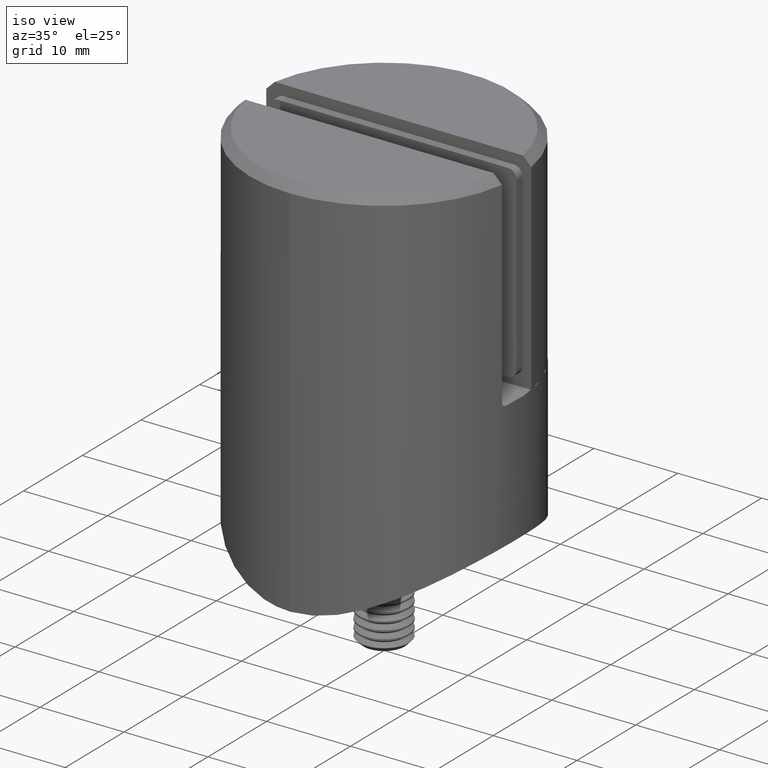
[diagram: clean part render]
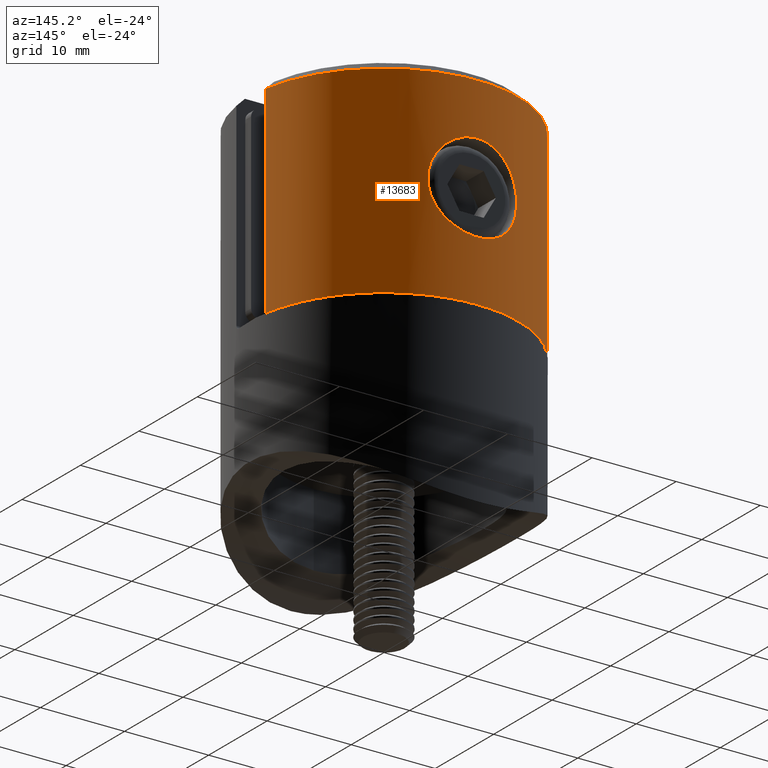
[diagram: tour spotlight — one face highlighted and labeled with its STEP entity id]
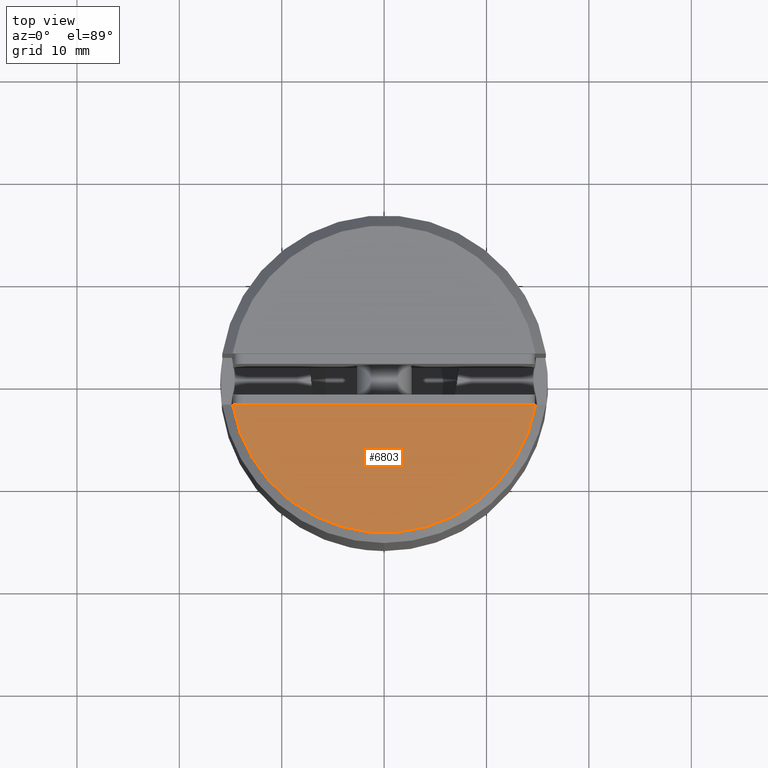
[diagram: tour spotlight — one face highlighted and labeled with its STEP entity id]
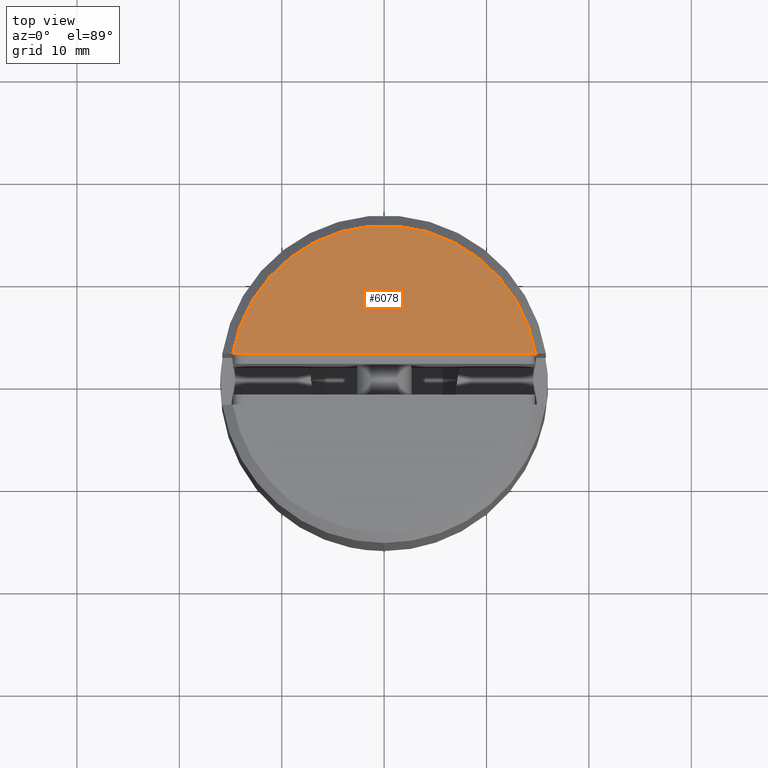
[diagram: tour spotlight — one face highlighted and labeled with its STEP entity id]
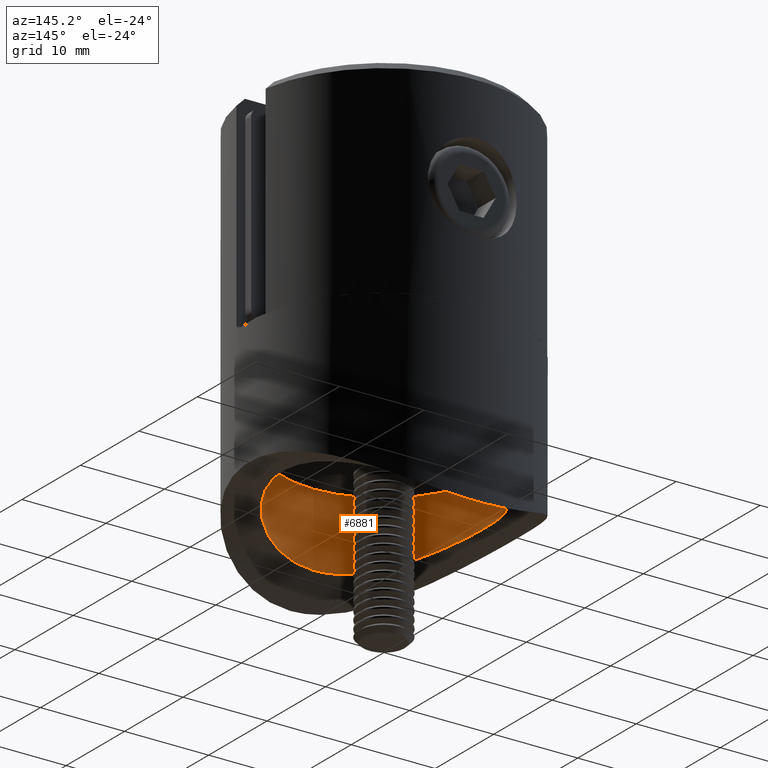
[diagram: tour spotlight — one face highlighted and labeled with its STEP entity id]
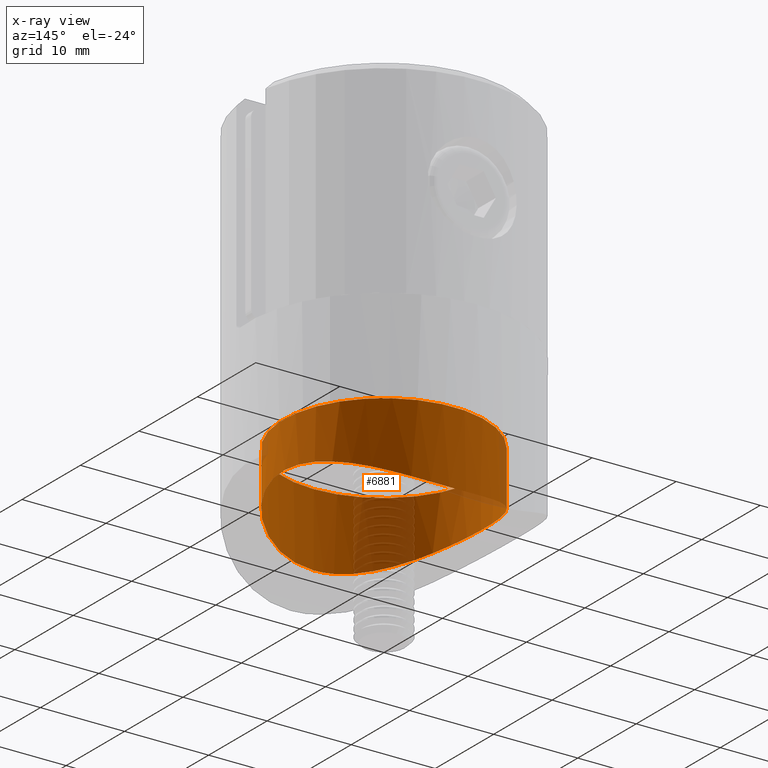
[diagram: x-ray of the same camera — body ghosted, this tour face saturated]
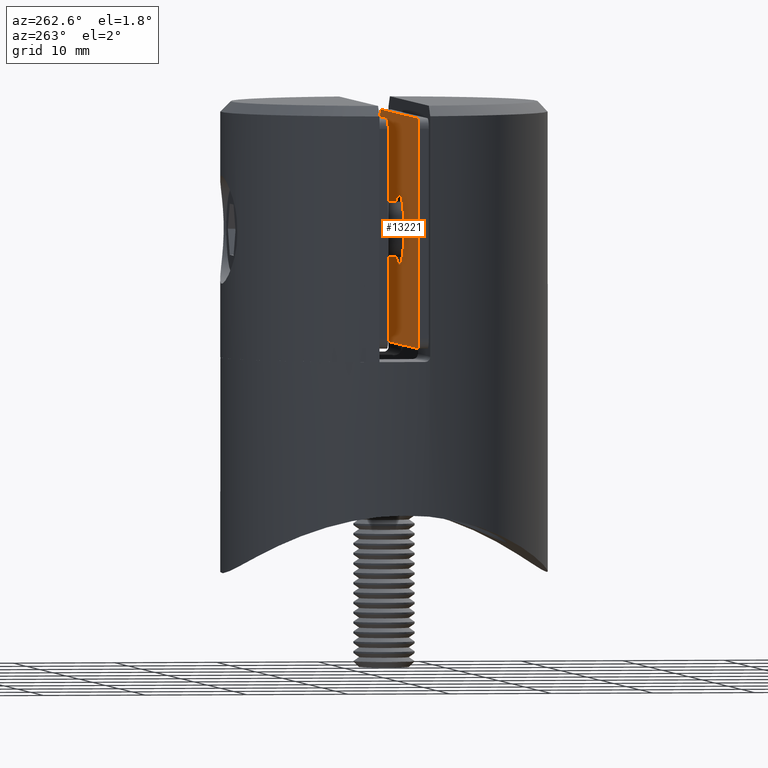
[diagram: tour spotlight — one face highlighted and labeled with its STEP entity id]
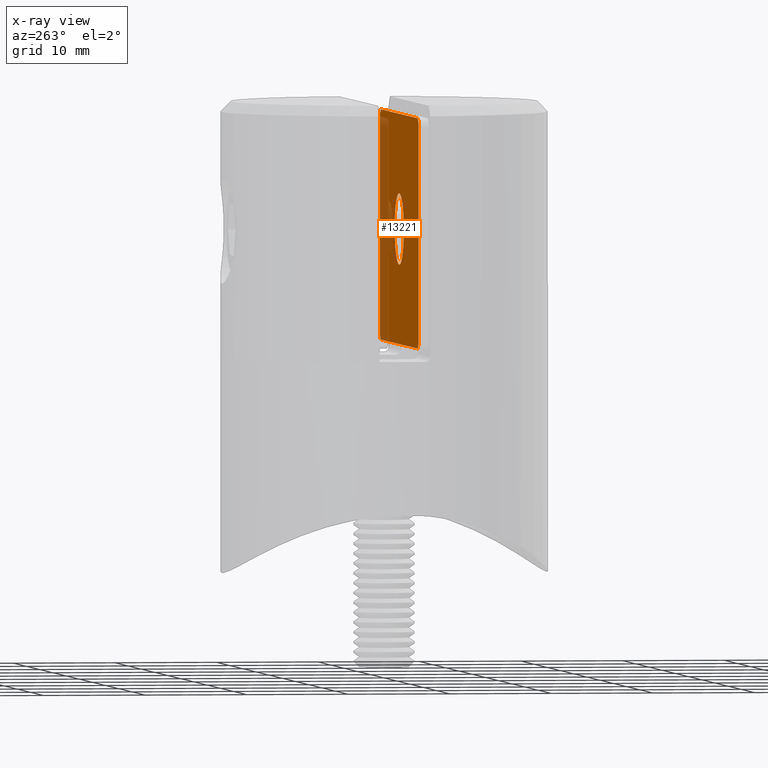
[diagram: x-ray of the same camera — body ghosted, this tour face saturated]
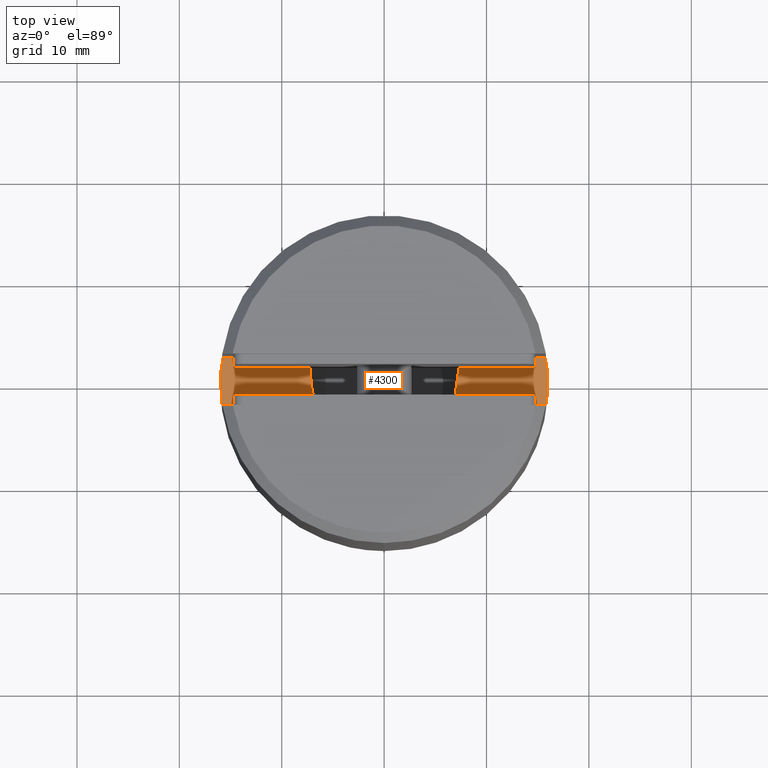
[diagram: tour spotlight — one face highlighted and labeled with its STEP entity id]
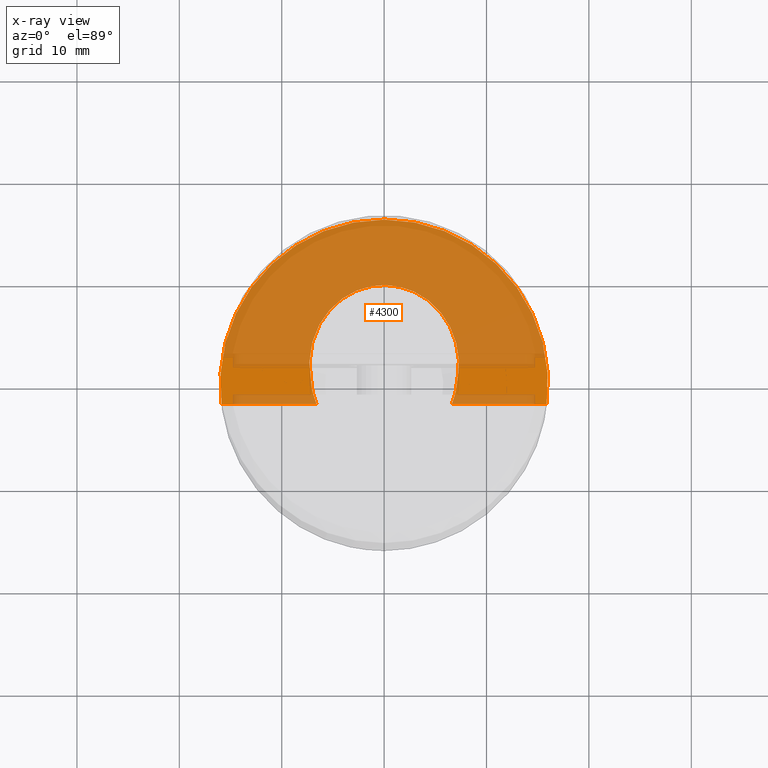
[diagram: x-ray of the same camera — body ghosted, this tour face saturated]
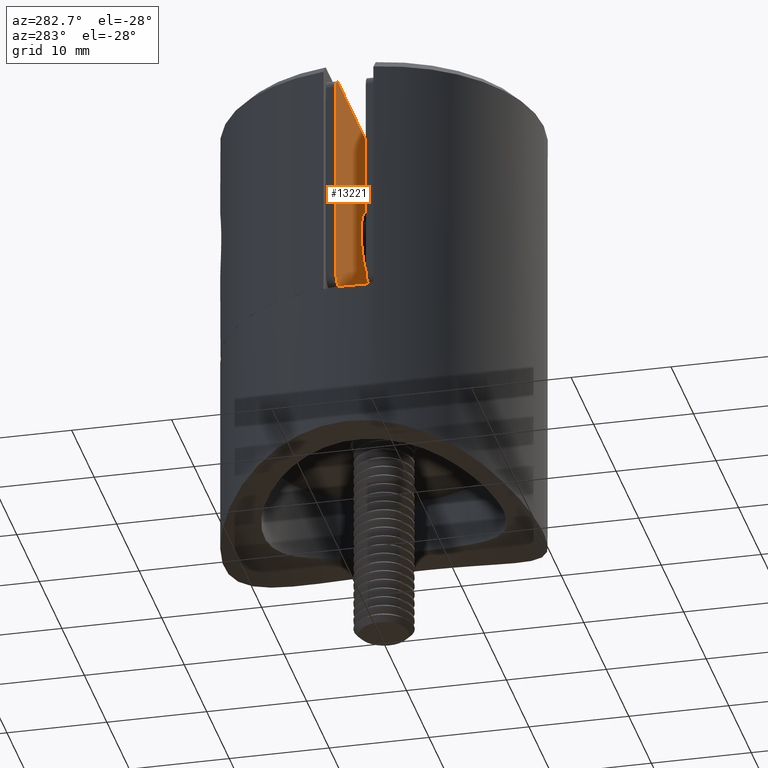
[diagram: tour spotlight — one face highlighted and labeled with its STEP entity id]
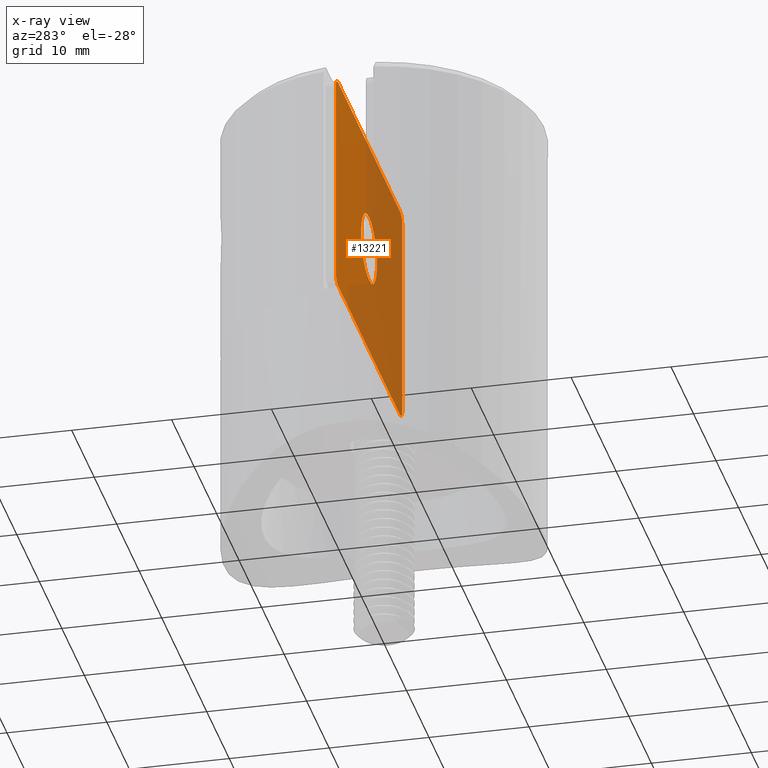
[diagram: x-ray of the same camera — body ghosted, this tour face saturated]
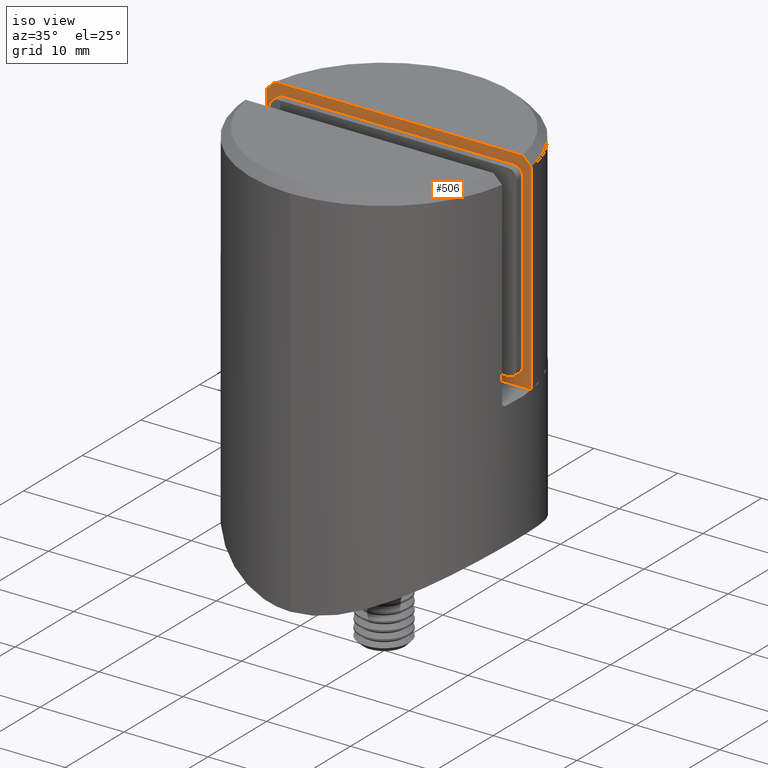
[diagram: tour spotlight — one face highlighted and labeled with its STEP entity id]
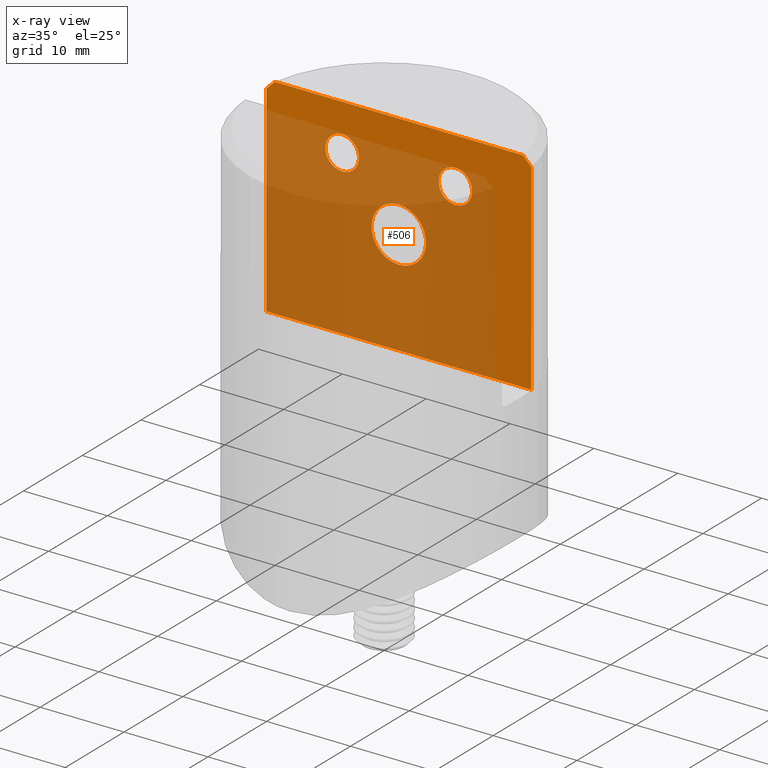
[diagram: x-ray of the same camera — body ghosted, this tour face saturated]
A machine part: a face-by-face anatomy tour. The part has 442 B-rep faces; the first image is the clean iso view, then the 8 largest visible faces are spotlighted one at a time (largest first), each with its STEP entity span.

Face 1 — auxiliary view, entity #13683. In plain terms, the highlighted cylindrical surface (partial cylindrical patch) has radius 16 mm, axis along (-0, -0, -1).
Definition (entity closure, byte-faithful):
#495 = CARTESIAN_POINT ( 'NONE',  ( -0.3522860916290787570, 16.00000000000000000, 17.79201239237408672 ) ) ;
#557 = CARTESIAN_POINT ( 'NONE',  ( 3.497081026042447860, 15.61517221440689696, 8.513117414624652213 ) ) ;
#621 = CARTESIAN_POINT ( 'NONE',  ( 3.985607334033227644, 15.49764926323538106, 15.99828359294880720 ) ) ;
#690 = CARTESIAN_POINT ( 'NONE',  ( -5.257295034990906224, 15.11178454863896548, 11.80230908429324366 ) ) ;
#757 = CARTESIAN_POINT ( 'NONE',  ( -5.121087635809609573, 15.15848424994337051, 11.12145543229183353 ) ) ;
#830 = CARTESIAN_POINT ( 'NONE',  ( 2.660365848181708959, 15.77995631153003586, 7.912381322152849172 ) ) ;
#1304 = CARTESIAN_POINT ( 'NONE',  ( 2.355687374283917723, 15.82892065562720774, 17.25144310635947420 ) ) ;
#1754 = VERTEX_POINT ( 'NONE', #9399 ) ;
#2144 = CARTESIAN_POINT ( 'NONE',  ( -4.590324926244765180, 15.32871067075936899, 15.15614063583641880 ) ) ;
#2210 = CARTESIAN_POINT ( 'NONE',  ( 3.230433189615292910, 15.67319358552446040, 16.70573557663903230 ) ) ;
#2274 = CARTESIAN_POINT ( 'NONE',  ( -3.980548691252966620, 15.49735657311758530, 9.008524026731866030 ) ) ;
#2311 = DIRECTION ( 'NONE',  ( -1.000000000000000000, 0.000000000000000000, 0.000000000000000000 ) ) ;
#2319 = VERTEX_POINT ( 'NONE', #13252 ) ;
#2348 = CARTESIAN_POINT ( 'NONE',  ( -2.662034064318531179, 15.77967426822476860, 7.913346628531211735 ) ) ;
#2366 = VERTEX_POINT ( 'NONE', #18822 ) ;
#2422 = CARTESIAN_POINT ( 'NONE',  ( -0.8712513173556744039, 15.97718260754328590, 7.277278691392724319 ) ) ;
#3687 = CARTESIAN_POINT ( 'NONE',  ( 5.019540321833638075, 15.19289236694161183, 10.78799375711294850 ) ) ;
#3753 = CARTESIAN_POINT ( 'NONE',  ( -3.231775796556548119, 15.67292911003706557, 16.70477095271068535 ) ) ;
#3821 = CARTESIAN_POINT ( 'NONE',  ( -4.752901296814642684, 15.27839153401004246, 14.85241008590862499 ) ) ;
#3856 = DIRECTION ( 'NONE',  ( -0.000000000000000000, -0.000000000000000000, -1.000000000000000000 ) ) ;
#3893 = CARTESIAN_POINT ( 'NONE',  ( 4.751803595193742957, 15.27874753075952974, 10.14476901113674678 ) ) ;
#3958 = CARTESIAN_POINT ( 'NONE',  ( 0.3449056875652130594, 16.00004617384833239, 7.207848004470791992 ) ) ;
#4095 = CARTESIAN_POINT ( 'NONE',  ( 0.3522860916290813105, 15.99999999999999289, 17.79201239237409737 ) ) ;
#4561 = CARTESIAN_POINT ( 'NONE',  ( 1.376816663495118220, 15.94153363987768302, 17.61275064222944309 ) ) ;
#5233 = CARTESIAN_POINT ( 'NONE',  ( 5.120256875218851533, 15.15876529373871051, 11.11858026866411109 ) ) ;
#5299 = CARTESIAN_POINT ( 'NONE',  ( 4.589517636115449051, 15.32894680940010090, 15.15743025044649528 ) ) ;
#5340 = EDGE_CURVE ( 'NONE', #19775, #13550, #8433, .T. ) ;
#5362 = CARTESIAN_POINT ( 'NONE',  ( -0.6965300852330672532, 15.98577589387532782, 7.251124774988615407 ) ) ;
#5430 = CARTESIAN_POINT ( 'NONE',  ( -5.257552708617123649, 15.11169680484459832, 13.19660663491658781 ) ) ;
#5503 = CARTESIAN_POINT ( 'NONE',  ( 1.712035268503111496, 15.91139791015749516, 7.480644414329857383 ) ) ;
#5572 = CARTESIAN_POINT ( 'NONE',  ( 1.208364794803681974, 15.95521448350475957, 17.65512357894530027 ) ) ;
#5622 = AXIS2_PLACEMENT_3D ( 'NONE', #15040, #7369, #13689 ) ;
#5693 = ORIENTED_EDGE ( 'NONE', *, *, #19616, .T. ) ;
#5760 = EDGE_LOOP ( 'NONE', ( #5693 ) ) ;
#5824 = EDGE_CURVE ( 'NONE', #2319, #13550, #10355, .T. ) ;
#5963 = VECTOR ( 'NONE', #9860, 1000.000000000000000 ) ;
#6039 = CARTESIAN_POINT ( 'NONE',  ( 0.6984311090703946290, 15.98837867808133595, 17.75716528833122965 ) ) ;
#6765 = CARTESIAN_POINT ( 'NONE',  ( 5.257938121933047881, 15.11156135741949846, 13.19355605481253768 ) ) ;
#6830 = CARTESIAN_POINT ( 'NONE',  ( -4.301980272546278350, 15.41112690705016064, 9.413281170072306026 ) ) ;
#6902 = CARTESIAN_POINT ( 'NONE',  ( -3.985433837877573993, 15.49768834756668490, 15.99843624459898450 ) ) ;
#6975 = CARTESIAN_POINT ( 'NONE',  ( 4.952276329194662985, 15.21446038016538793, 14.37353398025522111 ) ) ;
#7042 = CARTESIAN_POINT ( 'NONE',  ( 3.232030926237216661, 15.67286010056281853, 8.295506252668477742 ) ) ;
#7301 = ORIENTED_EDGE ( 'NONE', *, *, #5340, .T. ) ;
#7369 = DIRECTION ( 'NONE',  ( 0.000000000000000000, 0.000000000000000000, 1.000000000000000000 ) ) ;
#7784 = FACE_BOUND ( 'NONE', #5760, .T. ) ;
#8071 = CARTESIAN_POINT ( 'NONE',  ( -15.80348062927910924, 2.500000000000000444, 0.000000000000000000 ) ) ;
#8305 = CARTESIAN_POINT ( 'NONE',  ( 5.292047323327498276, 15.09947797538161751, 12.84824168566101399 ) ) ;
#8372 = CARTESIAN_POINT ( 'NONE',  ( -0.3492385583360302914, 15.99713154031720208, 7.216641435909873614 ) ) ;
#8433 = CIRCLE ( 'NONE', #5622, 16.00000000000000000 ) ;
#8442 = CARTESIAN_POINT ( 'NONE',  ( -5.292252921575840929, 15.09940591810568833, 12.15576239974241979 ) ) ;
#8505 = CARTESIAN_POINT ( 'NONE',  ( -1.384925815396719440, 15.94364300330872553, 7.380490071870023705 ) ) ;
#8525 = ORIENTED_EDGE ( 'NONE', *, *, #10030, .T. ) ;
#8579 = CARTESIAN_POINT ( 'NONE',  ( -3.498146977046135753, 15.61492046564176661, 8.514146728241241746 ) ) ;
#9066 = CARTESIAN_POINT ( 'NONE',  ( 1.875901854067217434, 15.89046853512453694, 17.45140457388313138 ) ) ;
#9399 = CARTESIAN_POINT ( 'NONE',  ( 15.80348062927910924, 2.500000000000000444, 23.99999999999998934 ) ) ;
#9636 = VECTOR ( 'NONE', #11788, 1000.000000000000000 ) ;
#9724 = CARTESIAN_POINT ( 'NONE',  ( -6.234162491791650496E-16, 15.99999999999999645, 17.79201239237409382 ) ) ;
#9793 = CARTESIAN_POINT ( 'NONE',  ( 3.985851892484717496, 15.49761800017884639, 9.001744271290140986 ) ) ;
#9860 = DIRECTION ( 'NONE',  ( -0.000000000000000000, -0.000000000000000000, -1.000000000000000000 ) ) ;
#9861 = CARTESIAN_POINT ( 'NONE',  ( 4.203559862595276364, 15.43924761441470039, 15.73352627170104157 ) ) ;
#9930 = CARTESIAN_POINT ( 'NONE',  ( -4.199549525447852538, 15.43944987430242044, 9.275258748572982270 ) ) ;
#10001 = CARTESIAN_POINT ( 'NONE',  ( -5.111680129427511154, 15.16158290116553431, 13.88070476849280332 ) ) ;
#10030 = EDGE_CURVE ( 'NONE', #1754, #19775, #15595, .T. ) ;
#10071 = CARTESIAN_POINT ( 'NONE',  ( 4.753422712762452207, 15.27823139355765036, 14.85148223343536422 ) ) ;
#10226 = CARTESIAN_POINT ( 'NONE',  ( 0.000000000000000000, 0.000000000000000000, 25.00000000000000000 ) ) ;
#10355 = LINE ( 'NONE', #19534, #9636 ) ;
#11038 = CARTESIAN_POINT ( 'NONE',  ( 0.000000000000000000, 0.000000000000000000, 23.99999999999998934 ) ) ;
#11336 = CARTESIAN_POINT ( 'NONE',  ( -0.1756559005377937022, 15.99997669933474853, 7.208058055433562039 ) ) ;
#11402 = CARTESIAN_POINT ( 'NONE',  ( 3.500656428966874234, 15.61433966178821642, 16.48352337562203829 ) ) ;
#11472 = CARTESIAN_POINT ( 'NONE',  ( -1.377996493300520431, 15.94418833040542260, 17.62119827275211748 ) ) ;
#11485 = ORIENTED_EDGE ( 'NONE', *, *, #14837, .T. ) ;
#11542 = CARTESIAN_POINT ( 'NONE',  ( 4.205712339177186898, 15.43863215786812049, 9.269691460688026297 ) ) ;
#11604 = CARTESIAN_POINT ( 'NONE',  ( -5.154832061183152625, 15.14691442579503189, 13.70976572678482341 ) ) ;
#11788 = DIRECTION ( 'NONE',  ( -0.000000000000000000, -0.000000000000000000, -1.000000000000000000 ) ) ;
#11866 = CYLINDRICAL_SURFACE ( 'NONE', #14460, 16.00000000000000000 ) ;
#12070 = CARTESIAN_POINT ( 'NONE',  ( -6.234162491791650496E-16, 15.99999999999999645, 17.79201239237409382 ) ) ;
#12382 = DIRECTION ( 'NONE',  ( 1.000000000000000000, 0.000000000000000000, 0.000000000000000000 ) ) ;
#12797 = CARTESIAN_POINT ( 'NONE',  ( -0.6982098491548247576, 15.98838699986739087, 17.75719022776721090 ) ) ;
#12868 = CARTESIAN_POINT ( 'NONE',  ( -3.863545061404868974, 15.52703168393198929, 8.879491669181454938 ) ) ;
#12935 = CARTESIAN_POINT ( 'NONE',  ( -4.588499673180546523, 15.32922496382492028, 9.841249378424246075 ) ) ;
#12997 = ORIENTED_EDGE ( 'NONE', *, *, #5824, .F. ) ;
#13000 = CARTESIAN_POINT ( 'NONE',  ( -2.352381994514662900, 15.82938656054863280, 7.747022212955370080 ) ) ;
#13068 = CARTESIAN_POINT ( 'NONE',  ( 5.256629011473251900, 15.11201664684831592, 11.79771631224429207 ) ) ;
#13137 = CARTESIAN_POINT ( 'NONE',  ( -3.501153233648437002, 15.61422278017439780, 16.48304720887621855 ) ) ;
#13252 = CARTESIAN_POINT ( 'NONE',  ( -15.80348062927910924, 2.500000000000000444, 23.99999999999998934 ) ) ;
#13548 = FACE_OUTER_BOUND ( 'NONE', #19540, .T. ) ;
#13550 = VERTEX_POINT ( 'NONE', #8071 ) ;
#13683 = ADVANCED_FACE ( 'NONE', ( #7784, #13548 ), #11866, .T. ) ;
#13689 = DIRECTION ( 'NONE',  ( 1.000000000000000000, 0.000000000000000000, 0.000000000000000000 ) ) ;
#14445 = CARTESIAN_POINT ( 'NONE',  ( 1.380987474259348202, 15.94400428790630464, 7.379366852819999600 ) ) ;
#14460 = AXIS2_PLACEMENT_3D ( 'NONE', #10226, #3856, #2311 ) ;
#14510 = CARTESIAN_POINT ( 'NONE',  ( 4.587318680221796008, 15.32957554898225894, 9.839282640875342878 ) ) ;
#14582 = CARTESIAN_POINT ( 'NONE',  ( -5.020348485948653128, 15.19262507436050846, 10.79031027885010552 ) ) ;
#14653 = CARTESIAN_POINT ( 'NONE',  ( -1.715477301007276800, 15.91103925118983398, 17.51823183248151139 ) ) ;
#14723 = CARTESIAN_POINT ( 'NONE',  ( -5.291769306872487810, 15.09957541351727528, 12.85159367770398298 ) ) ;
#14837 = EDGE_CURVE ( 'NONE', #2319, #1754, #16478, .T. ) ;
#15040 = CARTESIAN_POINT ( 'NONE',  ( 0.000000000000000000, 0.000000000000000000, 0.000000000000000000 ) ) ;
#15595 = LINE ( 'NONE', #17691, #5963 ) ;
#15990 = CARTESIAN_POINT ( 'NONE',  ( 5.291977408256522963, 15.09950247895189435, 12.15069747428299429 ) ) ;
#16063 = CARTESIAN_POINT ( 'NONE',  ( 0.6942526277363881837, 15.98863385113679136, 7.242051396129774332 ) ) ;
#16130 = CARTESIAN_POINT ( 'NONE',  ( -4.951432503723081524, 15.21473449692821944, 14.37572346555722369 ) ) ;
#16152 = B_SPLINE_CURVE_WITH_KNOTS ( 'NONE', 3,
 ( #9724, #495, #12797, #11472, #14653, #16266, #17695, #3753, #13137, #6902, #19349, #2144, #3821, #16130, #17844, #10001, #11604, #5430, #14723, #8442, #690, #757, #14582, #19209, #12935, #6830, #9930, #2274, #12868, #8579, #17775, #2348, #13000, #17556, #8505, #2422, #5362, #8372, #11336, #3958, #16063, #14445, #5503, #19275, #830, #7042, #557, #9793, #11542, #14510, #3893, #3687, #5233, #13068, #15990, #8305, #6765, #19137, #16193, #17627, #6975, #10071, #5299, #9861, #621, #11402, #2210, #19964, #1304, #9066, #16881, #4561, #5572, #6039, #4095, #12070 ),
 .UNSPECIFIED., .T., .F.,
 ( 4, 2, 2, 2, 2, 2, 2, 2, 2, 2, 2, 2, 2, 2, 2, 2, 2, 2, 2, 2, 2, 2, 2, 2, 2, 2, 2, 2, 2, 2, 2, 2, 2, 2, 2, 2, 2, 4 ),
 ( 0.000000000000000000, 0.001041331024074896748, 0.002082662048149793495, 0.003123993072224690460, 0.004165324096299586991, 0.005206655120374484823, 0.006247986144449387859, 0.006768651656486837642, 0.007289317168524288293, 0.008330648192599189594, 0.009371979216674089161, 0.01041331024074899046, 0.01145464126482389176, 0.01197530677686134068, 0.01249597228889879133, 0.01353730331297369610, 0.01457863433704860087, 0.01561996536112350391, 0.01614063087316095629, 0.01666129638519840694, 0.01770262740927331171, 0.01874395843334821649, 0.01978528945742311779, 0.02082662048149802603, 0.02186795150557292733, 0.02290928252964783557, 0.02395061355372273687, 0.02499194457779764164, 0.02603327560187254641, 0.02655394111391000053, 0.02707460662594745118, 0.02811593765002235248, 0.02915726867409726072, 0.03019859969817216203, 0.03123993072224706680, 0.03176059623428451745, 0.03228126174632196810, 0.03332259277039687634 ),
 .UNSPECIFIED. ) ;
#16193 = CARTESIAN_POINT ( 'NONE',  ( 5.112603964691076364, 15.16127144920658587, 13.87732755355404635 ) ) ;
#16266 = CARTESIAN_POINT ( 'NONE',  ( -2.355317495673049599, 15.82897697003034310, 17.25163051903010469 ) ) ;
#16478 = CIRCLE ( 'NONE', #19287, 16.00000000000000000 ) ;
#16881 = CARTESIAN_POINT ( 'NONE',  ( 1.710625952588486820, 15.90917589841034108, 17.51094822412147067 ) ) ;
#16943 = CARTESIAN_POINT ( 'NONE',  ( 15.80348062927910924, 2.500000000000000444, 0.000000000000000000 ) ) ;
#17556 = CARTESIAN_POINT ( 'NONE',  ( -1.715160400946374564, 15.91104662586404572, 7.481760897358329387 ) ) ;
#17627 = CARTESIAN_POINT ( 'NONE',  ( 5.010940025557264477, 15.19517526442422906, 14.21062285434933514 ) ) ;
#17691 = CARTESIAN_POINT ( 'NONE',  ( 15.80348062927910924, 2.500000000000000444, 25.00000000000000000 ) ) ;
#17695 = CARTESIAN_POINT ( 'NONE',  ( -2.658368214889932357, 15.78030925303806598, 17.08885083632396018 ) ) ;
#17775 = CARTESIAN_POINT ( 'NONE',  ( -3.233612801261692926, 15.67253309527159111, 8.296719999677064195 ) ) ;
#17844 = CARTESIAN_POINT ( 'NONE',  ( -5.010039682161589347, 15.19547209525473264, 14.21321971343113688 ) ) ;
#18632 = DIRECTION ( 'NONE',  ( 0.000000000000000000, 0.000000000000000000, -1.000000000000000000 ) ) ;
#18822 = CARTESIAN_POINT ( 'NONE',  ( 0.000000000000000000, 16.00000000000000000, 17.79201239237409027 ) ) ;
#19137 = CARTESIAN_POINT ( 'NONE',  ( 5.155620129302012522, 15.14664586866078366, 13.70638334576021933 ) ) ;
#19209 = CARTESIAN_POINT ( 'NONE',  ( -4.752670302374773392, 15.27847769142526069, 10.14647862557031388 ) ) ;
#19275 = CARTESIAN_POINT ( 'NONE',  ( 2.350713600823367333, 15.82964919961484007, 7.746144635887556973 ) ) ;
#19287 = AXIS2_PLACEMENT_3D ( 'NONE', #11038, #18632, #12382 ) ;
#19349 = CARTESIAN_POINT ( 'NONE',  ( -4.203550065317379847, 15.43925583066509688, 15.73362534227694809 ) ) ;
#19534 = CARTESIAN_POINT ( 'NONE',  ( -15.80348062927910924, 2.500000000000000444, 25.00000000000000000 ) ) ;
#19540 = EDGE_LOOP ( 'NONE', ( #12997, #11485, #8525, #7301 ) ) ;
#19616 = EDGE_CURVE ( 'NONE', #2366, #2366, #16152, .T. ) ;
#19775 = VERTEX_POINT ( 'NONE', #16943 ) ;
#19964 = CARTESIAN_POINT ( 'NONE',  ( 2.658322830447825691, 15.78030467041155482, 17.08881575815538412 ) ) ;

Face 2 — top view, entity #6803. In plain terms, the highlighted planar face has unit normal (0, 0, -1).
Definition (entity closure, byte-faithful):
#1683 = EDGE_CURVE ( 'NONE', #10757, #17136, #11264, .T. ) ;
#1732 = ORIENTED_EDGE ( 'NONE', *, *, #15578, .T. ) ;
#2030 = DIRECTION ( 'NONE',  ( -1.000000000000000000, 0.000000000000000000, 0.000000000000000000 ) ) ;
#4931 = PLANE ( 'NONE',  #17398 ) ;
#5576 = CARTESIAN_POINT ( 'NONE',  ( 0.000000000000000000, 4.793105234518837415E-16, 40.00000000000000000 ) ) ;
#6271 = CARTESIAN_POINT ( 'NONE',  ( -14.79019945774903988, -2.500000000000001332, 40.00000000000000000 ) ) ;
#6466 = DIRECTION ( 'NONE',  ( -0.000000000000000000, 0.000000000000000000, -1.000000000000000000 ) ) ;
#6803 = ADVANCED_FACE ( 'NONE', ( #11285 ), #4931, .F. ) ;
#8062 = EDGE_LOOP ( 'NONE', ( #14448, #1732 ) ) ;
#8495 = CIRCLE ( 'NONE', #18005, 15.00000000000000000 ) ;
#10309 = VECTOR ( 'NONE', #13498, 1000.000000000000000 ) ;
#10757 = VERTEX_POINT ( 'NONE', #14140 ) ;
#11264 = LINE ( 'NONE', #19974, #10309 ) ;
#11285 = FACE_OUTER_BOUND ( 'NONE', #8062, .T. ) ;
#13144 = DIRECTION ( 'NONE',  ( 0.000000000000000000, 0.000000000000000000, 1.000000000000000000 ) ) ;
#13498 = DIRECTION ( 'NONE',  ( -1.000000000000000000, 0.000000000000000000, 0.000000000000000000 ) ) ;
#14140 = CARTESIAN_POINT ( 'NONE',  ( 14.79019945774903810, -2.500000000000001332, 40.00000000000000000 ) ) ;
#14448 = ORIENTED_EDGE ( 'NONE', *, *, #1683, .T. ) ;
#14858 = DIRECTION ( 'NONE',  ( -1.000000000000000000, 0.000000000000000000, 0.000000000000000000 ) ) ;
#15578 = EDGE_CURVE ( 'NONE', #17136, #10757, #8495, .T. ) ;
#17136 = VERTEX_POINT ( 'NONE', #6271 ) ;
#17244 = CARTESIAN_POINT ( 'NONE',  ( 0.000000000000000000, 2.875863140711302646E-16, 40.00000000000000000 ) ) ;
#17398 = AXIS2_PLACEMENT_3D ( 'NONE', #17244, #6466, #2030 ) ;
#18005 = AXIS2_PLACEMENT_3D ( 'NONE', #5576, #13144, #14858 ) ;
#19974 = CARTESIAN_POINT ( 'NONE',  ( 15.80348062927910568, -2.500000000000001332, 40.00000000000000000 ) ) ;

Face 3 — top view, entity #6078. In plain terms, the highlighted planar face has unit normal (0, 0, 1).
Definition (entity closure, byte-faithful):
#380 = PLANE ( 'NONE',  #1246 ) ;
#571 = EDGE_CURVE ( 'NONE', #7553, #15724, #4110, .T. ) ;
#1246 = AXIS2_PLACEMENT_3D ( 'NONE', #12757, #1898, #9620 ) ;
#1898 = DIRECTION ( 'NONE',  ( 0.000000000000000000, 0.000000000000000000, 1.000000000000000000 ) ) ;
#2346 = EDGE_LOOP ( 'NONE', ( #16973, #4919 ) ) ;
#3714 = CARTESIAN_POINT ( 'NONE',  ( -15.80348062927910924, 2.500000000000000444, 25.00000000000000000 ) ) ;
#4110 = CIRCLE ( 'NONE', #4186, 14.99999999999999645 ) ;
#4186 = AXIS2_PLACEMENT_3D ( 'NONE', #9718, #14438, #19202 ) ;
#4919 = ORIENTED_EDGE ( 'NONE', *, *, #571, .T. ) ;
#6078 = ADVANCED_FACE ( 'NONE', ( #19075 ), #380, .T. ) ;
#6167 = CARTESIAN_POINT ( 'NONE',  ( -14.79019945774903455, 2.500000000000000444, 25.00000000000000000 ) ) ;
#6722 = DIRECTION ( 'NONE',  ( 1.000000000000000000, 0.000000000000000000, 0.000000000000000000 ) ) ;
#7172 = CARTESIAN_POINT ( 'NONE',  ( 14.79019945774903633, 2.500000000000000444, 25.00000000000000000 ) ) ;
#7553 = VERTEX_POINT ( 'NONE', #7172 ) ;
#9381 = LINE ( 'NONE', #3714, #10092 ) ;
#9620 = DIRECTION ( 'NONE',  ( 1.000000000000000000, 0.000000000000000000, -0.000000000000000000 ) ) ;
#9718 = CARTESIAN_POINT ( 'NONE',  ( 0.000000000000000000, 0.000000000000000000, 25.00000000000000000 ) ) ;
#10092 = VECTOR ( 'NONE', #6722, 1000.000000000000000 ) ;
#12757 = CARTESIAN_POINT ( 'NONE',  ( 0.000000000000000000, 0.000000000000000000, 25.00000000000000000 ) ) ;
#14438 = DIRECTION ( 'NONE',  ( 0.000000000000000000, 0.000000000000000000, 1.000000000000000000 ) ) ;
#15724 = VERTEX_POINT ( 'NONE', #6167 ) ;
#16973 = ORIENTED_EDGE ( 'NONE', *, *, #19072, .T. ) ;
#19072 = EDGE_CURVE ( 'NONE', #15724, #7553, #9381, .T. ) ;
#19075 = FACE_OUTER_BOUND ( 'NONE', #2346, .T. ) ;
#19202 = DIRECTION ( 'NONE',  ( 1.000000000000000000, 0.000000000000000000, 0.000000000000000000 ) ) ;

Face 4 — auxiliary view, entity #6881. An x-ray twin of the same camera follows (body ghosted, this face saturated) — the face is partly hidden behind the body. In plain terms, the highlighted cylindrical surface (bore or boss wall) has radius 12 mm, axis along (0, 0, 1).
Definition (entity closure, byte-faithful):
#5 = CARTESIAN_POINT ( 'NONE',  ( 0.000000000000000000, -12.00000000000000000, 5.500000000000000000 ) ) ;
#282 = CARTESIAN_POINT ( 'NONE',  ( 11.99835623843848254, -0.8229261088880877040, -0.0008167746764761500905 ) ) ;
#353 = CARTESIAN_POINT ( 'NONE',  ( 11.68812453784676997, 2.746747424154446282, -0.1535388448399391259 ) ) ;
#426 = CARTESIAN_POINT ( 'NONE',  ( 10.39753781211522465, 6.041122375144998280, -0.7581562581098312270 ) ) ;
#489 = CARTESIAN_POINT ( 'NONE',  ( -11.83676980995492656, 2.012707778259126723, -0.08079293340363088993 ) ) ;
#552 = CARTESIAN_POINT ( 'NONE',  ( 11.98134860951337544, 0.7795444277520021670, -0.009286518616062612932 ) ) ;
#628 = DIRECTION ( 'NONE',  ( 0.000000000000000000, -1.000000000000000000, 0.000000000000000000 ) ) ;
#775 = CIRCLE ( 'NONE', #19957, 12.00000000000000000 ) ;
#827 = CARTESIAN_POINT ( 'NONE',  ( -9.745698545558969528, -7.012258034414074359, -1.038033274842388831 ) ) ;
#855 = AXIS2_PLACEMENT_3D ( 'NONE', #9551, #7872, #15684 ) ;
#892 = CARTESIAN_POINT ( 'NONE',  ( -9.514531566800235041, -7.322841400923282507, -1.134829268100157051 ) ) ;
#949 = CARTESIAN_POINT ( 'NONE',  ( 0.000000000000000000, -12.00000000000000000, -3.192364160048966948 ) ) ;
#1660 = CARTESIAN_POINT ( 'NONE',  ( 7.919389504497335253, -9.023986877157172515, -1.747752891952410792 ) ) ;
#1861 = EDGE_CURVE ( 'NONE', #15852, #15852, #13493, .T. ) ;
#1864 = CARTESIAN_POINT ( 'NONE',  ( 9.500647687946369047, -7.340810164726306652, -1.140567088974864030 ) ) ;
#1938 = CARTESIAN_POINT ( 'NONE',  ( 12.00078488667562127, 0.3749694054577122904, 0.0003900051884250021268 ) ) ;
#2005 = CARTESIAN_POINT ( 'NONE',  ( -10.36397789494722232, 6.061496093134104868, -0.7703786265790560916 ) ) ;
#2068 = CARTESIAN_POINT ( 'NONE',  ( -11.97852724690728010, 0.8208623453137269266, -0.01068808196268601282 ) ) ;
#2139 = CARTESIAN_POINT ( 'NONE',  ( -3.882004252855646875, 11.38222604466706400, -2.847785230268917722 ) ) ;
#2343 = CARTESIAN_POINT ( 'NONE',  ( 6.505213034913026604E-16, -12.00000000000000355, -3.192364160048967836 ) ) ;
#2418 = CARTESIAN_POINT ( 'NONE',  ( -5.002065329744690203, -10.91476856616009350, -2.606572484197602790 ) ) ;
#2485 = CARTESIAN_POINT ( 'NONE',  ( -5.357233650677781789, -10.74494795904032252, -2.521048401317932619 ) ) ;
#2697 = ORIENTED_EDGE ( 'NONE', *, *, #1861, .F. ) ;
#3415 = CARTESIAN_POINT ( 'NONE',  ( 11.21179667001580427, -4.295135844317118590, -0.3821871996852051478 ) ) ;
#3484 = CARTESIAN_POINT ( 'NONE',  ( -6.027925122910785305, 10.40495505933779796, -2.351316378043092126 ) ) ;
#3556 = CARTESIAN_POINT ( 'NONE',  ( -6.992892635298123771, 9.759569424916128000, -2.058619237370085564 ) ) ;
#3624 = CARTESIAN_POINT ( 'NONE',  ( -10.73760201798802605, 5.371934064872165848, -0.6023726279213551527 ) ) ;
#3684 = CARTESIAN_POINT ( 'NONE',  ( 6.381227902763322746, 10.17014346185654716, -2.244571605509955159 ) ) ;
#3749 = CARTESIAN_POINT ( 'NONE',  ( -10.17813557869357055, -6.368356069178862988, -0.8523861817964262233 ) ) ;
#3816 = CARTESIAN_POINT ( 'NONE',  ( -3.172650746269809030, -11.60015500778260567, -2.967654295197181824 ) ) ;
#3889 = ORIENTED_EDGE ( 'NONE', *, *, #15538, .T. ) ;
#4700 = CARTESIAN_POINT ( 'NONE',  ( 5.357783238888708333, -10.76600222842181509, -2.529837144953091865 ) ) ;
#4967 = CARTESIAN_POINT ( 'NONE',  ( -3.128600358679027416, 11.61214559620642817, -2.974252853476483605 ) ) ;
#5035 = CARTESIAN_POINT ( 'NONE',  ( 9.020160668173019758, 7.923891421194312557, -1.334770341779082603 ) ) ;
#5099 = CARTESIAN_POINT ( 'NONE',  ( -10.90673812417755606, 5.019534654845066335, -0.5245596382952835146 ) ) ;
#5158 = CARTESIAN_POINT ( 'NONE',  ( -11.90420000709318415, -1.565289286581040828, -0.04748281452396312802 ) ) ;
#5227 = CARTESIAN_POINT ( 'NONE',  ( 0.8276083064805868084, 11.99777453643313585, -3.191089902260649591 ) ) ;
#5425 = CARTESIAN_POINT ( 'NONE',  ( -2.006662850714839852, -11.83767846514503574, -3.100057363583339054 ) ) ;
#5433 = DIRECTION ( 'NONE',  ( -0.000000000000000000, 1.917242093807535139E-17, 1.000000000000000000 ) ) ;
#6249 = CARTESIAN_POINT ( 'NONE',  ( 7.009854366334731246, -9.747480142305608553, -2.053262771657989205 ) ) ;
#6317 = CARTESIAN_POINT ( 'NONE',  ( 9.007861817891933853, -7.937772095165905206, -1.339623612778301442 ) ) ;
#6502 = CARTESIAN_POINT ( 'NONE',  ( -7.304110049150839501, 9.528970815913202941, -1.957827478964521806 ) ) ;
#6561 = CARTESIAN_POINT ( 'NONE',  ( -8.194480654476357984, 8.774929498813531126, -1.648716717845720492 ) ) ;
#6630 = CARTESIAN_POINT ( 'NONE',  ( -5.341740982604020083, 10.77454546725082629, -2.534066205648411341 ) ) ;
#6694 = CARTESIAN_POINT ( 'NONE',  ( 11.91783007569960340, -1.610956976535738994, -0.04111797629031000573 ) ) ;
#6759 = CARTESIAN_POINT ( 'NONE',  ( -11.98202972690545565, -0.7688120596847022314, -0.008947967337122487291 ) ) ;
#6881 = ADVANCED_FACE ( 'NONE', ( #12014, #19817 ), #11545, .F. ) ;
#7726 = CARTESIAN_POINT ( 'NONE',  ( 0.8070193259837700195, -12.00000000000000355, -3.192364160048968280 ) ) ;
#7781 = CARTESIAN_POINT ( 'NONE',  ( 7.322924702648744066, -9.514401877279745179, -1.951595292302034990 ) ) ;
#7872 = DIRECTION ( 'NONE',  ( -0.000000000000000000, 1.917242093807535139E-17, 1.000000000000000000 ) ) ;
#8035 = CARTESIAN_POINT ( 'NONE',  ( 5.013679317599204488, 10.90936238756101062, -2.603837893014184779 ) ) ;
#8102 = CARTESIAN_POINT ( 'NONE',  ( -9.014722811180396533, 7.958038468148064482, -1.341434241691341178 ) ) ;
#8168 = CARTESIAN_POINT ( 'NONE',  ( -11.59621243672269308, 3.188778082667213187, -0.1984848078262390902 ) ) ;
#8232 = CARTESIAN_POINT ( 'NONE',  ( 11.58156039805464665, -3.166290065746002913, -0.2053883541668012624 ) ) ;
#8437 = CARTESIAN_POINT ( 'NONE',  ( -6.047496706749641682, -10.37215708578941253, -2.339823217398605326 ) ) ;
#8573 = CARTESIAN_POINT ( 'NONE',  ( -11.60957917186326327, -3.139154922637570344, -0.1919917926977175171 ) ) ;
#9273 = CARTESIAN_POINT ( 'NONE',  ( 3.143104121999274359, -11.58786650530214857, -2.961290591912538517 ) ) ;
#9524 = CARTESIAN_POINT ( 'NONE',  ( -11.84463727616265594, -1.965635607165880705, -0.07691826163064009736 ) ) ;
#9551 = CARTESIAN_POINT ( 'NONE',  ( 0.000000000000000000, 0.000000000000000000, 15.00000000000000000 ) ) ;
#9591 = CARTESIAN_POINT ( 'NONE',  ( -10.15914365962806087, 6.398672683246799942, -0.8606895648340384675 ) ) ;
#9657 = CARTESIAN_POINT ( 'NONE',  ( 10.75720846276276887, -5.375199722087175225, -0.5943595528489943325 ) ) ;
#9714 = EDGE_LOOP ( 'NONE', ( #3889 ) ) ;
#9721 = CARTESIAN_POINT ( 'NONE',  ( 11.84380872415750829, 1.970043535022847125, -0.07732466356679534858 ) ) ;
#9788 = CARTESIAN_POINT ( 'NONE',  ( -0.3644195078959513445, 12.00104498601161929, -3.192962498917546021 ) ) ;
#9858 = CARTESIAN_POINT ( 'NONE',  ( -1.608597630388682642, -11.89851914137329914, -3.134531445987232878 ) ) ;
#9927 = CARTESIAN_POINT ( 'NONE',  ( -7.341704178654981483, -9.523483951414640103, -1.952024193280994746 ) ) ;
#10134 = CARTESIAN_POINT ( 'NONE',  ( -8.759216067525215976, -8.211378716535362443, -1.436971583496924110 ) ) ;
#10286 = VERTEX_POINT ( 'NONE', #5 ) ;
#10876 = CARTESIAN_POINT ( 'NONE',  ( 3.902467920001592372, -11.35466854645217971, -2.835414413475290107 ) ) ;
#11002 = CARTESIAN_POINT ( 'NONE',  ( 1.597299965336328231, -11.91945595609101893, -3.145689031195217478 ) ) ;
#11067 = CARTESIAN_POINT ( 'NONE',  ( 11.22444197711558012, 4.262385450071589865, -0.3762231979956690009 ) ) ;
#11128 = CARTESIAN_POINT ( 'NONE',  ( 11.59133738045090745, 3.130091062176283856, -0.2006512547465993113 ) ) ;
#11200 = CARTESIAN_POINT ( 'NONE',  ( -0.7632517181576861098, 11.98245655968257140, -3.182280786997637723 ) ) ;
#11267 = CARTESIAN_POINT ( 'NONE',  ( -11.89763472742815509, 1.614068736934629156, -0.05072662965328097323 ) ) ;
#11330 = CARTESIAN_POINT ( 'NONE',  ( 7.350909164820414787, 9.516915717686790899, -1.949115784592212020 ) ) ;
#11399 = CARTESIAN_POINT ( 'NONE',  ( -7.935924722622422323, -9.034573867799041480, -1.745925010653365028 ) ) ;
#11545 = CYLINDRICAL_SURFACE ( 'NONE', #855, 12.00000000000000000 ) ;
#11666 = CARTESIAN_POINT ( 'NONE',  ( -6.379927968817162842, -10.17083383099132732, -2.244915355002711443 ) ) ;
#12014 = FACE_OUTER_BOUND ( 'NONE', #16141, .T. ) ;
#12347 = CARTESIAN_POINT ( 'NONE',  ( 4.274857615058659022, -11.21957011989764474, -2.763726767153112718 ) ) ;
#12410 = CARTESIAN_POINT ( 'NONE',  ( 8.748586959355518999, -8.222531008042007983, -1.441045033413910437 ) ) ;
#12602 = CARTESIAN_POINT ( 'NONE',  ( 10.38815140037873874, -6.057499157495394471, -0.7623617608505630638 ) ) ;
#12665 = CARTESIAN_POINT ( 'NONE',  ( 9.747996988990410117, 7.009104274377333965, -1.037066162643342171 ) ) ;
#12734 = CARTESIAN_POINT ( 'NONE',  ( 11.34669473524632188, -3.925614935186954924, -0.3181019003762565744 ) ) ;
#12794 = CARTESIAN_POINT ( 'NONE',  ( -11.99909552791039147, 0.4238500050456610047, -0.0004494263174526926625 ) ) ;
#12864 = CARTESIAN_POINT ( 'NONE',  ( 11.90270855561181129, 1.576684197197556703, -0.04821990293208918560 ) ) ;
#12994 = CARTESIAN_POINT ( 'NONE',  ( -10.75129709280243695, -5.344474401587786083, -0.5961187878586632349 ) ) ;
#13203 = CARTESIAN_POINT ( 'NONE',  ( -3.920544655177100601, -11.36840583680243277, -2.840433682131639603 ) ) ;
#13493 = B_SPLINE_CURVE_WITH_KNOTS ( 'NONE', 3,
 ( #16951, #7726, #11002, #18529, #9273, #10876, #12347, #4700, #15462, #6249, #7781, #1660, #13977, #12410, #6317, #1864, #15787, #12602, #9657, #3415, #12734, #8232, #17285, #6694, #282, #1938, #552, #12864, #9721, #353, #11128, #15985, #11067, #14171, #426, #12665, #19067, #5035, #15718, #18920, #11330, #3684, #15922, #14441, #8035, #17551, #18787, #18997, #14303, #17477, #5227, #9788, #11200, #14238, #15857, #4967, #2139, #6630, #3484, #3556, #6502, #17353, #6561, #8102, #18849, #9591, #2005, #3624, #5099, #17415, #8168, #489, #11267, #2068, #12794, #14372, #6759, #5158, #9524, #8573, #14648, #19134, #12994, #17690, #3749, #827, #892, #14507, #10134, #11399, #9927, #11666, #8437, #2485, #2418, #13203, #3816, #5425, #9858, #19403, #16189, #2343 ),
 .UNSPECIFIED., .T., .F.,
 ( 4, 2, 2, 2, 2, 2, 2, 2, 2, 2, 2, 2, 2, 2, 2, 2, 2, 2, 2, 2, 2, 2, 2, 2, 2, 2, 2, 2, 2, 2, 2, 2, 2, 2, 2, 2, 2, 2, 2, 2, 2, 2, 2, 2, 2, 2, 2, 2, 2, 2, 4 ),
 ( 0.000000000000000000, 0.002382830365826740706, 0.003574245548740111276, 0.004765660731653481412, 0.007148491097480223419, 0.008339906280393593122, 0.009531321463306964559, 0.01072273664622033600, 0.01191415182913370396, 0.01429698219496044163, 0.01548839737787381481, 0.01667981256078718624, 0.01906264292661392912, 0.02025405810952729882, 0.02144547329244067199, 0.02263688847535404169, 0.02382830365826741140, 0.02621113402409415774, 0.02740254920700753091, 0.02859396438992090408, 0.03097679475574763655, 0.03216820993866100625, 0.03335962512157437942, 0.03455104030448774566, 0.03574245548740111883, 0.03812528585322785823, 0.03931670103614123141, 0.04050811621905459764, 0.04289094658488134398, 0.04527377695070808339, 0.04646519213362144962, 0.04765660731653482279, 0.05003943768236156220, 0.05123085286527492149, 0.05242226804818828079, 0.05480509841401501325, 0.05599651359692837255, 0.05718792877984173184, 0.05837934396275509807, 0.05957075914566846431, 0.06195358951149518983, 0.06314500469440856301, 0.06433641987732192924, 0.06552783506023530935, 0.06671925024314867558, 0.06910208060897540805, 0.07029349579188877428, 0.07148491097480214052, 0.07386774134062888686, 0.07505915652354225309, 0.07625057170645561933 ),
 .UNSPECIFIED. ) ;
#13977 = CARTESIAN_POINT ( 'NONE',  ( 8.204350261225819452, -8.765638981542737795, -1.645106641045691820 ) ) ;
#14171 = CARTESIAN_POINT ( 'NONE',  ( 10.76753736418075214, 5.355767806900959549, -0.5896556938450501217 ) ) ;
#14238 = CARTESIAN_POINT ( 'NONE',  ( -1.563993444087727891, 11.90444214975238424, -3.137889889323655535 ) ) ;
#14303 = CARTESIAN_POINT ( 'NONE',  ( 2.790633914422290029, 11.67784028832884502, -3.010962472236546006 ) ) ;
#14372 = CARTESIAN_POINT ( 'NONE',  ( -12.00084625378126901, -0.3709872070578065784, 0.0004204979919077831058 ) ) ;
#14441 = CARTESIAN_POINT ( 'NONE',  ( 5.363494113821250409, 10.74167844249070569, -2.519443835393347264 ) ) ;
#14507 = CARTESIAN_POINT ( 'NONE',  ( -9.021995087365244359, -7.921737294449466837, -1.334036986370622957 ) ) ;
#14648 = CARTESIAN_POINT ( 'NONE',  ( -11.37815881665336093, -3.893574997416594297, -0.3043961010260404776 ) ) ;
#15462 = CARTESIAN_POINT ( 'NONE',  ( 6.040483956466012216, -10.39799322076785870, -2.347915282408937987 ) ) ;
#15538 = EDGE_CURVE ( 'NONE', #10286, #10286, #775, .T. ) ;
#15684 = DIRECTION ( 'NONE',  ( 0.000000000000000000, -1.000000000000000000, 0.000000000000000000 ) ) ;
#15718 = CARTESIAN_POINT ( 'NONE',  ( 8.760450537716309327, 8.209913829427346599, -1.436471177860457971 ) ) ;
#15787 = CARTESIAN_POINT ( 'NONE',  ( 9.735302190078968465, -7.026780034831434207, -1.042426199313138957 ) ) ;
#15852 = VERTEX_POINT ( 'NONE', #949 ) ;
#15857 = CARTESIAN_POINT ( 'NONE',  ( -1.961008736453691670, 11.84533499414465751, -3.104371902536601890 ) ) ;
#15922 = CARTESIAN_POINT ( 'NONE',  ( 6.046596860217343661, 10.37253061122861553, -2.340020071737848539 ) ) ;
#15935 = CARTESIAN_POINT ( 'NONE',  ( 0.000000000000000000, -1.821379989117158474E-16, 5.500000000000000000 ) ) ;
#15985 = CARTESIAN_POINT ( 'NONE',  ( 11.35995681738705798, 3.886895088892381001, -0.3117781294990293328 ) ) ;
#16141 = EDGE_LOOP ( 'NONE', ( #2697 ) ) ;
#16189 = CARTESIAN_POINT ( 'NONE',  ( -0.4035096629918839550, -12.00000000000000355, -3.192364160048967836 ) ) ;
#16951 = CARTESIAN_POINT ( 'NONE',  ( 6.505213034913026604E-16, -12.00000000000000355, -3.192364160048967836 ) ) ;
#17285 = CARTESIAN_POINT ( 'NONE',  ( 11.68085976250891456, -2.777585143965007219, -0.1570793884659543727 ) ) ;
#17353 = CARTESIAN_POINT ( 'NONE',  ( -7.905897351387634941, 9.035933570470390919, -1.752551249662967159 ) ) ;
#17415 = CARTESIAN_POINT ( 'NONE',  ( -11.36187879387260935, 3.939336100875703295, -0.3121567077270017698 ) ) ;
#17477 = CARTESIAN_POINT ( 'NONE',  ( 1.616364843544915164, 11.91745486539440080, -3.144519402524525109 ) ) ;
#17551 = CARTESIAN_POINT ( 'NONE',  ( 4.296972526719801344, 11.21103006451540374, -2.759252137052941922 ) ) ;
#17690 = CARTESIAN_POINT ( 'NONE',  ( -10.37940689370363501, -6.035040044760819455, -0.7635291580147756108 ) ) ;
#18529 = CARTESIAN_POINT ( 'NONE',  ( 2.759565129108193737, -11.68507593750782902, -3.014969772306046458 ) ) ;
#18787 = CARTESIAN_POINT ( 'NONE',  ( 3.930082449265524414, 11.34501660680714608, -2.830275750588560069 ) ) ;
#18849 = CARTESIAN_POINT ( 'NONE',  ( -9.505779134762789795, 7.365121252109001482, -1.140709277486021467 ) ) ;
#18920 = CARTESIAN_POINT ( 'NONE',  ( 7.944165695803491190, 9.026790472765203077, -1.742906026797240937 ) ) ;
#18997 = CARTESIAN_POINT ( 'NONE',  ( 3.178131202257020949, 11.57818776527636118, -2.956000567338005869 ) ) ;
#19067 = CARTESIAN_POINT ( 'NONE',  ( 9.514467378538913778, 7.322995578125893523, -1.134863776744903907 ) ) ;
#19134 = CARTESIAN_POINT ( 'NONE',  ( -10.92238356352623541, -4.985693870524486648, -0.5173336349612900342 ) ) ;
#19403 = CARTESIAN_POINT ( 'NONE',  ( -0.8068503213528116502, -11.97962172412182191, -3.180657147891483572 ) ) ;
#19817 = FACE_OUTER_BOUND ( 'NONE', #9714, .T. ) ;
#19957 = AXIS2_PLACEMENT_3D ( 'NONE', #15935, #5433, #628 ) ;

Face 5 — auxiliary view, entity #13221. An x-ray twin of the same camera follows (body ghosted, this face saturated) — the face is partly hidden behind the body. In plain terms, the highlighted planar face has unit normal (0, 1, 0).
Definition (entity closure, byte-faithful):
#95 = EDGE_CURVE ( 'NONE', #11234, #13423, #9877, .T. ) ;
#259 = DIRECTION ( 'NONE',  ( 0.000000000000000000, -1.000000000000000000, -0.000000000000000000 ) ) ;
#280 = AXIS2_PLACEMENT_3D ( 'NONE', #4413, #1287, #18300 ) ;
#635 = AXIS2_PLACEMENT_3D ( 'NONE', #10863, #1644, #12466 ) ;
#717 = CARTESIAN_POINT ( 'NONE',  ( 13.74999999999999822, 0.000000000000000000, 10.24999999999999822 ) ) ;
#856 = DIRECTION ( 'NONE',  ( 0.000000000000000000, -1.000000000000000000, -0.000000000000000000 ) ) ;
#898 = ORIENTED_EDGE ( 'NONE', *, *, #5932, .F. ) ;
#1087 = EDGE_CURVE ( 'NONE', #11234, #11782, #10809, .T. ) ;
#1219 = VERTEX_POINT ( 'NONE', #7545 ) ;
#1287 = DIRECTION ( 'NONE',  ( 0.000000000000000000, 1.000000000000000000, 0.000000000000000000 ) ) ;
#1644 = DIRECTION ( 'NONE',  ( 0.000000000000000000, -1.000000000000000000, 0.000000000000000000 ) ) ;
#1656 = VECTOR ( 'NONE', #15898, 1000.000000000000000 ) ;
#2258 = CIRCLE ( 'NONE', #11742, 1.000000000000000888 ) ;
#2369 = LINE ( 'NONE', #19727, #14150 ) ;
#3375 = CARTESIAN_POINT ( 'NONE',  ( -14.75000000000000000, 0.000000000000000000, 11.24999999999999822 ) ) ;
#3478 = ORIENTED_EDGE ( 'NONE', *, *, #18018, .T. ) ;
#4413 = CARTESIAN_POINT ( 'NONE',  ( 0.000000000000000000, 0.000000000000000000, 0.000000000000000000 ) ) ;
#4433 = EDGE_CURVE ( 'NONE', #18533, #13423, #2369, .T. ) ;
#4608 = CARTESIAN_POINT ( 'NONE',  ( 0.000000000000000000, 0.000000000000000000, 3.499999999999999556 ) ) ;
#4723 = AXIS2_PLACEMENT_3D ( 'NONE', #14597, #16207, #10015 ) ;
#5525 = ORIENTED_EDGE ( 'NONE', *, *, #95, .T. ) ;
#5932 = EDGE_CURVE ( 'NONE', #11379, #1219, #19575, .T. ) ;
#6233 = PLANE ( 'NONE',  #635 ) ;
#6541 = EDGE_LOOP ( 'NONE', ( #7625, #3478, #18892, #5525, #18000, #19835, #898, #14277 ) ) ;
#7187 = EDGE_CURVE ( 'NONE', #10140, #11553, #15636, .T. ) ;
#7545 = CARTESIAN_POINT ( 'NONE',  ( 13.74999999999999822, 0.000000000000000000, 11.24999999999999822 ) ) ;
#7563 = FACE_BOUND ( 'NONE', #10013, .T. ) ;
#7625 = ORIENTED_EDGE ( 'NONE', *, *, #7187, .F. ) ;
#7882 = DIRECTION ( 'NONE',  ( 0.000000000000000000, 0.000000000000000000, -1.000000000000000000 ) ) ;
#8020 = CARTESIAN_POINT ( 'NONE',  ( -14.75000000000000000, 0.000000000000000000, 10.24999999999999822 ) ) ;
#8675 = AXIS2_PLACEMENT_3D ( 'NONE', #717, #856, #11493 ) ;
#9296 = DIRECTION ( 'NONE',  ( 1.000000000000000000, 0.000000000000000000, 0.000000000000000000 ) ) ;
#9588 = AXIS2_PLACEMENT_3D ( 'NONE', #9631, #14342, #12897 ) ;
#9631 = CARTESIAN_POINT ( 'NONE',  ( -13.75000000000000178, 0.000000000000000000, -10.24999999999999289 ) ) ;
#9877 = CIRCLE ( 'NONE', #4723, 1.000000000000000888 ) ;
#10013 = EDGE_LOOP ( 'NONE', ( #11985 ) ) ;
#10015 = DIRECTION ( 'NONE',  ( 0.000000000000000000, 0.000000000000000000, -1.000000000000000000 ) ) ;
#10140 = VERTEX_POINT ( 'NONE', #16467 ) ;
#10252 = CARTESIAN_POINT ( 'NONE',  ( 14.74999999999999645, 0.000000000000000000, -10.24999999999999289 ) ) ;
#10337 = CARTESIAN_POINT ( 'NONE',  ( -13.74999999999999822, 0.000000000000000000, 11.24999999999999822 ) ) ;
#10809 = LINE ( 'NONE', #17189, #1656 ) ;
#10863 = CARTESIAN_POINT ( 'NONE',  ( 0.000000000000000000, 0.000000000000000000, 0.000000000000000000 ) ) ;
#11234 = VERTEX_POINT ( 'NONE', #14787 ) ;
#11379 = VERTEX_POINT ( 'NONE', #10337 ) ;
#11493 = DIRECTION ( 'NONE',  ( 0.000000000000000000, 0.000000000000000000, -1.000000000000000000 ) ) ;
#11553 = VERTEX_POINT ( 'NONE', #8020 ) ;
#11742 = AXIS2_PLACEMENT_3D ( 'NONE', #15693, #259, #7882 ) ;
#11782 = VERTEX_POINT ( 'NONE', #13606 ) ;
#11985 = ORIENTED_EDGE ( 'NONE', *, *, #17875, .T. ) ;
#12466 = DIRECTION ( 'NONE',  ( 0.000000000000000000, 0.000000000000000000, -1.000000000000000000 ) ) ;
#12562 = CIRCLE ( 'NONE', #8675, 1.000000000000000888 ) ;
#12897 = DIRECTION ( 'NONE',  ( 0.000000000000000000, 0.000000000000000000, -1.000000000000000000 ) ) ;
#13221 = ADVANCED_FACE ( 'NONE', ( #19910, #7563 ), #6233, .T. ) ;
#13423 = VERTEX_POINT ( 'NONE', #10252 ) ;
#13449 = DIRECTION ( 'NONE',  ( -1.541976423090495387E-16, 0.000000000000000000, -1.000000000000000000 ) ) ;
#13492 = EDGE_CURVE ( 'NONE', #11379, #11553, #2258, .T. ) ;
#13606 = CARTESIAN_POINT ( 'NONE',  ( -13.75000000000000178, 0.000000000000000000, -11.24999999999999112 ) ) ;
#14150 = VECTOR ( 'NONE', #13449, 1000.000000000000000 ) ;
#14277 = ORIENTED_EDGE ( 'NONE', *, *, #13492, .T. ) ;
#14342 = DIRECTION ( 'NONE',  ( 0.000000000000000000, -1.000000000000000000, -0.000000000000000000 ) ) ;
#14597 = CARTESIAN_POINT ( 'NONE',  ( 13.74999999999999467, 0.000000000000000000, -10.25000000000000178 ) ) ;
#14719 = CIRCLE ( 'NONE', #9588, 0.9999999999999991118 ) ;
#14787 = CARTESIAN_POINT ( 'NONE',  ( 13.74999999999999467, 0.000000000000000000, -11.25000000000000178 ) ) ;
#15144 = VECTOR ( 'NONE', #15256, 1000.000000000000000 ) ;
#15256 = DIRECTION ( 'NONE',  ( 1.541976423090496126E-16, -0.000000000000000000, 1.000000000000000000 ) ) ;
#15422 = VECTOR ( 'NONE', #9296, 1000.000000000000000 ) ;
#15636 = LINE ( 'NONE', #19909, #15144 ) ;
#15693 = CARTESIAN_POINT ( 'NONE',  ( -13.74999999999999822, 0.000000000000000000, 10.24999999999999822 ) ) ;
#15898 = DIRECTION ( 'NONE',  ( -1.000000000000000000, -0.000000000000000000, 3.528251137579946599E-16 ) ) ;
#15908 = CIRCLE ( 'NONE', #280, 3.499999999999999556 ) ;
#15937 = CARTESIAN_POINT ( 'NONE',  ( 14.75000000000000000, 0.000000000000000000, 10.24999999999999822 ) ) ;
#16207 = DIRECTION ( 'NONE',  ( 0.000000000000000000, -1.000000000000000000, -0.000000000000000000 ) ) ;
#16467 = CARTESIAN_POINT ( 'NONE',  ( -14.75000000000000355, 0.000000000000000000, -10.24999999999998579 ) ) ;
#16580 = EDGE_CURVE ( 'NONE', #18533, #1219, #12562, .T. ) ;
#17189 = CARTESIAN_POINT ( 'NONE',  ( -14.75000000000000355, 0.000000000000000000, -11.24999999999999112 ) ) ;
#17875 = EDGE_CURVE ( 'NONE', #19507, #19507, #15908, .T. ) ;
#18000 = ORIENTED_EDGE ( 'NONE', *, *, #4433, .F. ) ;
#18018 = EDGE_CURVE ( 'NONE', #10140, #11782, #14719, .T. ) ;
#18300 = DIRECTION ( 'NONE',  ( 0.000000000000000000, 0.000000000000000000, 1.000000000000000000 ) ) ;
#18533 = VERTEX_POINT ( 'NONE', #15937 ) ;
#18892 = ORIENTED_EDGE ( 'NONE', *, *, #1087, .F. ) ;
#19507 = VERTEX_POINT ( 'NONE', #4608 ) ;
#19575 = LINE ( 'NONE', #3375, #15422 ) ;
#19727 = CARTESIAN_POINT ( 'NONE',  ( 14.75000000000000000, 0.000000000000000000, 11.24999999999999822 ) ) ;
#19835 = ORIENTED_EDGE ( 'NONE', *, *, #16580, .T. ) ;
#19909 = CARTESIAN_POINT ( 'NONE',  ( -14.75000000000000000, 0.000000000000000000, 11.24999999999999822 ) ) ;
#19910 = FACE_OUTER_BOUND ( 'NONE', #6541, .T. ) ;

Face 6 — top view, entity #4300. An x-ray twin of the same camera follows (body ghosted, this face saturated) — the face is partly hidden behind the body. In plain terms, the highlighted planar face has unit normal (0, -0, -1).
Definition (entity closure, byte-faithful):
#111 = CARTESIAN_POINT ( 'NONE',  ( -8.209505265282327713, 5.457934394450707494, 14.99999999999999822 ) ) ;
#178 = CARTESIAN_POINT ( 'NONE',  ( 7.131423088841220448, 0.2447344990263529418, 15.00000000000000000 ) ) ;
#402 = DIRECTION ( 'NONE',  ( -0.000000000000000000, 1.917242093807535139E-17, 1.000000000000000000 ) ) ;
#734 = PLANE ( 'NONE',  #1086 ) ;
#1086 = AXIS2_PLACEMENT_3D ( 'NONE', #5403, #11446, #2532 ) ;
#1155 = ORIENTED_EDGE ( 'NONE', *, *, #8197, .T. ) ;
#1156 = CARTESIAN_POINT ( 'NONE',  ( 7.131423088841220448, 0.2447344990263529418, 15.00000000000000000 ) ) ;
#1234 = VERTEX_POINT ( 'NONE', #16916 ) ;
#1825 = VERTEX_POINT ( 'NONE', #9463 ) ;
#2532 = DIRECTION ( 'NONE',  ( 0.000000000000000000, 1.000000000000000000, -1.917242093807535139E-17 ) ) ;
#2925 = DIRECTION ( 'NONE',  ( 1.000000000000000000, -0.000000000000000000, -0.000000000000000000 ) ) ;
#3153 = VECTOR ( 'NONE', #2925, 1000.000000000000000 ) ;
#4026 =( BOUNDED_CURVE ( )  B_SPLINE_CURVE ( 3, ( #19136, #6763, #11603, #17774 ),
 .UNSPECIFIED., .F., .F. ) 
 B_SPLINE_CURVE_WITH_KNOTS ( ( 4, 4 ),
 ( 4.322451641404126299, 4.640287728610632101 ),
 .UNSPECIFIED. ) 
 CURVE ( )  GEOMETRIC_REPRESENTATION_ITEM ( )  RATIONAL_B_SPLINE_CURVE ( ( 1.000000000000000000, 0.9915993872373697338, 0.9915993872373697338, 1.000000000000000000 ) ) 
 REPRESENTATION_ITEM ( '' )  );
#4081 = CARTESIAN_POINT ( 'NONE',  ( 7.076622069001389015, -0.5284290019927428972, 15.00000000000000000 ) ) ;
#4300 = ADVANCED_FACE ( 'NONE', ( #6634 ), #734, .F. ) ;
#4815 = VECTOR ( 'NONE', #12885, 1000.000000000000000 ) ;
#5403 = CARTESIAN_POINT ( 'NONE',  ( 0.000000000000000000, -2.940653797014001276E-33, 15.00000000000000000 ) ) ;
#5792 = LINE ( 'NONE', #13802, #3153 ) ;
#5875 = EDGE_CURVE ( 'NONE', #1825, #14333, #5792, .T. ) ;
#6009 = CARTESIAN_POINT ( 'NONE',  ( -15.87450786638754430, -2.000000000000001332, 15.00000000000000000 ) ) ;
#6634 = FACE_OUTER_BOUND ( 'NONE', #13989, .T. ) ;
#6716 =( BOUNDED_CURVE ( )  B_SPLINE_CURVE ( 3, ( #15738, #111, #14127, #17105, #10960, #12498, #178 ),
 .UNSPECIFIED., .F., .F. ) 
 B_SPLINE_CURVE_WITH_KNOTS ( ( 4, 3, 4 ),
 ( 4.497065233503045434, 6.283185307179589785, 8.069305380856134136 ),
 .UNSPECIFIED. ) 
 CURVE ( )  GEOMETRIC_REPRESENTATION_ITEM ( )  RATIONAL_B_SPLINE_CURVE ( ( 1.000000000000000000, 0.7513541435075969943, 0.7513541435075969943, 1.000000000000000000, 0.7513541435075969943, 0.7513541435075969943, 1.000000000000000000 ) ) 
 REPRESENTATION_ITEM ( '' )  );
#6743 = VERTEX_POINT ( 'NONE', #6009 ) ;
#6763 = CARTESIAN_POINT ( 'NONE',  ( -6.902441179652776704, -1.283012801296417482, 15.00000000000000000 ) ) ;
#7161 = CARTESIAN_POINT ( 'NONE',  ( 6.613270099401566071, -2.000000000000001332, 15.00000000000000000 ) ) ;
#7518 = EDGE_CURVE ( 'NONE', #1234, #18682, #4026, .T. ) ;
#7779 = EDGE_CURVE ( 'NONE', #14333, #6743, #10819, .T. ) ;
#8197 = EDGE_CURVE ( 'NONE', #18682, #11348, #6716, .T. ) ;
#8925 = CARTESIAN_POINT ( 'NONE',  ( 7.131423088841220448, 0.2447344990263529418, 15.00000000000000000 ) ) ;
#9463 = CARTESIAN_POINT ( 'NONE',  ( 6.613270099401566071, -2.000000000000001332, 15.00000000000000000 ) ) ;
#9700 = CARTESIAN_POINT ( 'NONE',  ( 0.000000000000000000, -5.881307594028002552E-33, 15.00000000000000000 ) ) ;
#9911 = CARTESIAN_POINT ( 'NONE',  ( -7.131423088841227553, 0.2447344990264114784, 15.00000000000000000 ) ) ;
#10819 = CIRCLE ( 'NONE', #12085, 16.00000000000000000 ) ;
#10960 = CARTESIAN_POINT ( 'NONE',  ( 5.045696227753969865, 9.614984130205071367, 14.99999999999999822 ) ) ;
#11332 = ORIENTED_EDGE ( 'NONE', *, *, #5875, .T. ) ;
#11348 = VERTEX_POINT ( 'NONE', #8925 ) ;
#11446 = DIRECTION ( 'NONE',  ( 0.000000000000000000, -1.917242093807535139E-17, -1.000000000000000000 ) ) ;
#11603 = CARTESIAN_POINT ( 'NONE',  ( -7.076622069001397008, -0.5284290019927083693, 15.00000000000000000 ) ) ;
#12085 = AXIS2_PLACEMENT_3D ( 'NONE', #9700, #402, #12648 ) ;
#12498 = CARTESIAN_POINT ( 'NONE',  ( 8.209505265282350805, 5.457934394450649762, 14.99999999999999822 ) ) ;
#12648 = DIRECTION ( 'NONE',  ( 0.000000000000000000, -1.000000000000000000, 0.000000000000000000 ) ) ;
#12656 = CARTESIAN_POINT ( 'NONE',  ( 15.87450786638754430, -2.000000000000001332, 15.00000000000000000 ) ) ;
#12712 = LINE ( 'NONE', #17508, #4815 ) ;
#12885 = DIRECTION ( 'NONE',  ( 1.000000000000000000, -0.000000000000000000, -0.000000000000000000 ) ) ;
#13396 = EDGE_CURVE ( 'NONE', #11348, #1825, #19882, .T. ) ;
#13802 = CARTESIAN_POINT ( 'NONE',  ( 15.80348062927910568, -2.000000000000001332, 15.00000000000000000 ) ) ;
#13989 = EDGE_LOOP ( 'NONE', ( #19661, #15649, #17703, #1155, #17745, #11332 ) ) ;
#14127 = CARTESIAN_POINT ( 'NONE',  ( -5.045696227753917462, 9.614984130205108670, 14.99999999999999822 ) ) ;
#14333 = VERTEX_POINT ( 'NONE', #12656 ) ;
#15649 = ORIENTED_EDGE ( 'NONE', *, *, #19066, .T. ) ;
#15738 = CARTESIAN_POINT ( 'NONE',  ( -7.131423088841227553, 0.2447344990264114784, 15.00000000000000000 ) ) ;
#16916 = CARTESIAN_POINT ( 'NONE',  ( -6.613270099401565183, -2.000000000000004885, 15.00000000000000000 ) ) ;
#17105 = CARTESIAN_POINT ( 'NONE',  ( 2.593480985524365931E-14, 9.614984130205089130, 15.00000000000000000 ) ) ;
#17508 = CARTESIAN_POINT ( 'NONE',  ( -6.389628886300967814, -2.000000000000001332, 15.00000000000000000 ) ) ;
#17703 = ORIENTED_EDGE ( 'NONE', *, *, #7518, .T. ) ;
#17745 = ORIENTED_EDGE ( 'NONE', *, *, #13396, .T. ) ;
#17774 = CARTESIAN_POINT ( 'NONE',  ( -7.131423088841227553, 0.2447344990264114784, 15.00000000000000000 ) ) ;
#18036 = CARTESIAN_POINT ( 'NONE',  ( 6.902441179652768710, -1.283012801296432137, 15.00000000000000000 ) ) ;
#18682 = VERTEX_POINT ( 'NONE', #9911 ) ;
#19066 = EDGE_CURVE ( 'NONE', #6743, #1234, #12712, .T. ) ;
#19136 = CARTESIAN_POINT ( 'NONE',  ( -6.613270099401565183, -2.000000000000004885, 15.00000000000000000 ) ) ;
#19661 = ORIENTED_EDGE ( 'NONE', *, *, #7779, .T. ) ;
#19882 =( BOUNDED_CURVE ( )  B_SPLINE_CURVE ( 3, ( #1156, #4081, #18036, #7161 ),
 .UNSPECIFIED., .F., .F. ) 
 B_SPLINE_CURVE_WITH_KNOTS ( ( 4, 4 ),
 ( 1.642897578568961903, 1.960733665775459711 ),
 .UNSPECIFIED. ) 
 CURVE ( )  GEOMETRIC_REPRESENTATION_ITEM ( )  RATIONAL_B_SPLINE_CURVE ( ( 1.000000000000000000, 0.9915993872373701778, 0.9915993872373701778, 1.000000000000000000 ) ) 
 REPRESENTATION_ITEM ( '' )  );

Face 7 — auxiliary view, entity #13221. An x-ray twin of the same camera follows (body ghosted, this face saturated) — the face is partly hidden behind the body. In plain terms, the highlighted planar face has unit normal (0, -1, 0).
Definition (entity closure, byte-faithful):
#95 = EDGE_CURVE ( 'NONE', #11234, #13423, #9877, .T. ) ;
#259 = DIRECTION ( 'NONE',  ( 0.000000000000000000, -1.000000000000000000, -0.000000000000000000 ) ) ;
#280 = AXIS2_PLACEMENT_3D ( 'NONE', #4413, #1287, #18300 ) ;
#635 = AXIS2_PLACEMENT_3D ( 'NONE', #10863, #1644, #12466 ) ;
#717 = CARTESIAN_POINT ( 'NONE',  ( 13.74999999999999822, 0.000000000000000000, 10.24999999999999822 ) ) ;
#856 = DIRECTION ( 'NONE',  ( 0.000000000000000000, -1.000000000000000000, -0.000000000000000000 ) ) ;
#898 = ORIENTED_EDGE ( 'NONE', *, *, #5932, .F. ) ;
#1087 = EDGE_CURVE ( 'NONE', #11234, #11782, #10809, .T. ) ;
#1219 = VERTEX_POINT ( 'NONE', #7545 ) ;
#1287 = DIRECTION ( 'NONE',  ( 0.000000000000000000, 1.000000000000000000, 0.000000000000000000 ) ) ;
#1644 = DIRECTION ( 'NONE',  ( 0.000000000000000000, -1.000000000000000000, 0.000000000000000000 ) ) ;
#1656 = VECTOR ( 'NONE', #15898, 1000.000000000000000 ) ;
#2258 = CIRCLE ( 'NONE', #11742, 1.000000000000000888 ) ;
#2369 = LINE ( 'NONE', #19727, #14150 ) ;
#3375 = CARTESIAN_POINT ( 'NONE',  ( -14.75000000000000000, 0.000000000000000000, 11.24999999999999822 ) ) ;
#3478 = ORIENTED_EDGE ( 'NONE', *, *, #18018, .T. ) ;
#4413 = CARTESIAN_POINT ( 'NONE',  ( 0.000000000000000000, 0.000000000000000000, 0.000000000000000000 ) ) ;
#4433 = EDGE_CURVE ( 'NONE', #18533, #13423, #2369, .T. ) ;
#4608 = CARTESIAN_POINT ( 'NONE',  ( 0.000000000000000000, 0.000000000000000000, 3.499999999999999556 ) ) ;
#4723 = AXIS2_PLACEMENT_3D ( 'NONE', #14597, #16207, #10015 ) ;
#5525 = ORIENTED_EDGE ( 'NONE', *, *, #95, .T. ) ;
#5932 = EDGE_CURVE ( 'NONE', #11379, #1219, #19575, .T. ) ;
#6233 = PLANE ( 'NONE',  #635 ) ;
#6541 = EDGE_LOOP ( 'NONE', ( #7625, #3478, #18892, #5525, #18000, #19835, #898, #14277 ) ) ;
#7187 = EDGE_CURVE ( 'NONE', #10140, #11553, #15636, .T. ) ;
#7545 = CARTESIAN_POINT ( 'NONE',  ( 13.74999999999999822, 0.000000000000000000, 11.24999999999999822 ) ) ;
#7563 = FACE_BOUND ( 'NONE', #10013, .T. ) ;
#7625 = ORIENTED_EDGE ( 'NONE', *, *, #7187, .F. ) ;
#7882 = DIRECTION ( 'NONE',  ( 0.000000000000000000, 0.000000000000000000, -1.000000000000000000 ) ) ;
#8020 = CARTESIAN_POINT ( 'NONE',  ( -14.75000000000000000, 0.000000000000000000, 10.24999999999999822 ) ) ;
#8675 = AXIS2_PLACEMENT_3D ( 'NONE', #717, #856, #11493 ) ;
#9296 = DIRECTION ( 'NONE',  ( 1.000000000000000000, 0.000000000000000000, 0.000000000000000000 ) ) ;
#9588 = AXIS2_PLACEMENT_3D ( 'NONE', #9631, #14342, #12897 ) ;
#9631 = CARTESIAN_POINT ( 'NONE',  ( -13.75000000000000178, 0.000000000000000000, -10.24999999999999289 ) ) ;
#9877 = CIRCLE ( 'NONE', #4723, 1.000000000000000888 ) ;
#10013 = EDGE_LOOP ( 'NONE', ( #11985 ) ) ;
#10015 = DIRECTION ( 'NONE',  ( 0.000000000000000000, 0.000000000000000000, -1.000000000000000000 ) ) ;
#10140 = VERTEX_POINT ( 'NONE', #16467 ) ;
#10252 = CARTESIAN_POINT ( 'NONE',  ( 14.74999999999999645, 0.000000000000000000, -10.24999999999999289 ) ) ;
#10337 = CARTESIAN_POINT ( 'NONE',  ( -13.74999999999999822, 0.000000000000000000, 11.24999999999999822 ) ) ;
#10809 = LINE ( 'NONE', #17189, #1656 ) ;
#10863 = CARTESIAN_POINT ( 'NONE',  ( 0.000000000000000000, 0.000000000000000000, 0.000000000000000000 ) ) ;
#11234 = VERTEX_POINT ( 'NONE', #14787 ) ;
#11379 = VERTEX_POINT ( 'NONE', #10337 ) ;
#11493 = DIRECTION ( 'NONE',  ( 0.000000000000000000, 0.000000000000000000, -1.000000000000000000 ) ) ;
#11553 = VERTEX_POINT ( 'NONE', #8020 ) ;
#11742 = AXIS2_PLACEMENT_3D ( 'NONE', #15693, #259, #7882 ) ;
#11782 = VERTEX_POINT ( 'NONE', #13606 ) ;
#11985 = ORIENTED_EDGE ( 'NONE', *, *, #17875, .T. ) ;
#12466 = DIRECTION ( 'NONE',  ( 0.000000000000000000, 0.000000000000000000, -1.000000000000000000 ) ) ;
#12562 = CIRCLE ( 'NONE', #8675, 1.000000000000000888 ) ;
#12897 = DIRECTION ( 'NONE',  ( 0.000000000000000000, 0.000000000000000000, -1.000000000000000000 ) ) ;
#13221 = ADVANCED_FACE ( 'NONE', ( #19910, #7563 ), #6233, .T. ) ;
#13423 = VERTEX_POINT ( 'NONE', #10252 ) ;
#13449 = DIRECTION ( 'NONE',  ( -1.541976423090495387E-16, 0.000000000000000000, -1.000000000000000000 ) ) ;
#13492 = EDGE_CURVE ( 'NONE', #11379, #11553, #2258, .T. ) ;
#13606 = CARTESIAN_POINT ( 'NONE',  ( -13.75000000000000178, 0.000000000000000000, -11.24999999999999112 ) ) ;
#14150 = VECTOR ( 'NONE', #13449, 1000.000000000000000 ) ;
#14277 = ORIENTED_EDGE ( 'NONE', *, *, #13492, .T. ) ;
#14342 = DIRECTION ( 'NONE',  ( 0.000000000000000000, -1.000000000000000000, -0.000000000000000000 ) ) ;
#14597 = CARTESIAN_POINT ( 'NONE',  ( 13.74999999999999467, 0.000000000000000000, -10.25000000000000178 ) ) ;
#14719 = CIRCLE ( 'NONE', #9588, 0.9999999999999991118 ) ;
#14787 = CARTESIAN_POINT ( 'NONE',  ( 13.74999999999999467, 0.000000000000000000, -11.25000000000000178 ) ) ;
#15144 = VECTOR ( 'NONE', #15256, 1000.000000000000000 ) ;
#15256 = DIRECTION ( 'NONE',  ( 1.541976423090496126E-16, -0.000000000000000000, 1.000000000000000000 ) ) ;
#15422 = VECTOR ( 'NONE', #9296, 1000.000000000000000 ) ;
#15636 = LINE ( 'NONE', #19909, #15144 ) ;
#15693 = CARTESIAN_POINT ( 'NONE',  ( -13.74999999999999822, 0.000000000000000000, 10.24999999999999822 ) ) ;
#15898 = DIRECTION ( 'NONE',  ( -1.000000000000000000, -0.000000000000000000, 3.528251137579946599E-16 ) ) ;
#15908 = CIRCLE ( 'NONE', #280, 3.499999999999999556 ) ;
#15937 = CARTESIAN_POINT ( 'NONE',  ( 14.75000000000000000, 0.000000000000000000, 10.24999999999999822 ) ) ;
#16207 = DIRECTION ( 'NONE',  ( 0.000000000000000000, -1.000000000000000000, -0.000000000000000000 ) ) ;
#16467 = CARTESIAN_POINT ( 'NONE',  ( -14.75000000000000355, 0.000000000000000000, -10.24999999999998579 ) ) ;
#16580 = EDGE_CURVE ( 'NONE', #18533, #1219, #12562, .T. ) ;
#17189 = CARTESIAN_POINT ( 'NONE',  ( -14.75000000000000355, 0.000000000000000000, -11.24999999999999112 ) ) ;
#17875 = EDGE_CURVE ( 'NONE', #19507, #19507, #15908, .T. ) ;
#18000 = ORIENTED_EDGE ( 'NONE', *, *, #4433, .F. ) ;
#18018 = EDGE_CURVE ( 'NONE', #10140, #11782, #14719, .T. ) ;
#18300 = DIRECTION ( 'NONE',  ( 0.000000000000000000, 0.000000000000000000, 1.000000000000000000 ) ) ;
#18533 = VERTEX_POINT ( 'NONE', #15937 ) ;
#18892 = ORIENTED_EDGE ( 'NONE', *, *, #1087, .F. ) ;
#19507 = VERTEX_POINT ( 'NONE', #4608 ) ;
#19575 = LINE ( 'NONE', #3375, #15422 ) ;
#19727 = CARTESIAN_POINT ( 'NONE',  ( 14.75000000000000000, 0.000000000000000000, 11.24999999999999822 ) ) ;
#19835 = ORIENTED_EDGE ( 'NONE', *, *, #16580, .T. ) ;
#19909 = CARTESIAN_POINT ( 'NONE',  ( -14.75000000000000000, 0.000000000000000000, 11.24999999999999822 ) ) ;
#19910 = FACE_OUTER_BOUND ( 'NONE', #6541, .T. ) ;

Face 8 — iso view, entity #506. An x-ray twin of the same camera follows (body ghosted, this face saturated) — the face is partly hidden behind the body. In plain terms, the highlighted planar face has unit normal (0, 1, 0).
Definition (entity closure, byte-faithful):
#329 = EDGE_LOOP ( 'NONE', ( #19477, #16336, #2067, #2018, #15707, #9197 ) ) ;
#506 = ADVANCED_FACE ( 'NONE', ( #7225, #15154, #3145, #19068 ), #4762, .F. ) ;
#711 = EDGE_CURVE ( 'NONE', #6242, #6242, #7692, .T. ) ;
#1754 = VERTEX_POINT ( 'NONE', #9399 ) ;
#1931 = VECTOR ( 'NONE', #3845, 1000.000000000000000 ) ;
#2018 = ORIENTED_EDGE ( 'NONE', *, *, #6911, .T. ) ;
#2067 = ORIENTED_EDGE ( 'NONE', *, *, #5824, .T. ) ;
#2169 = CIRCLE ( 'NONE', #4192, 3.249999999999999556 ) ;
#2319 = VERTEX_POINT ( 'NONE', #13252 ) ;
#3145 = FACE_BOUND ( 'NONE', #16749, .T. ) ;
#3155 = ORIENTED_EDGE ( 'NONE', *, *, #15061, .F. ) ;
#3573 = ORIENTED_EDGE ( 'NONE', *, *, #18902, .T. ) ;
#3714 = CARTESIAN_POINT ( 'NONE',  ( -15.80348062927910924, 2.500000000000000444, 25.00000000000000000 ) ) ;
#3795 = CARTESIAN_POINT ( 'NONE',  ( -14.79019945774903455, 2.500000000000000444, 25.00000000000000000 ) ) ;
#3845 = DIRECTION ( 'NONE',  ( 1.000000000000000000, 0.000000000000000000, 0.000000000000000000 ) ) ;
#4192 = AXIS2_PLACEMENT_3D ( 'NONE', #7752, #16787, #18625 ) ;
#4217 = EDGE_CURVE ( 'NONE', #1754, #7553, #9566, .T. ) ;
#4321 = EDGE_CURVE ( 'NONE', #15724, #2319, #16029, .T. ) ;
#4762 = PLANE ( 'NONE',  #10618 ) ;
#5824 = EDGE_CURVE ( 'NONE', #2319, #13550, #10355, .T. ) ;
#5963 = VECTOR ( 'NONE', #9860, 1000.000000000000000 ) ;
#6167 = CARTESIAN_POINT ( 'NONE',  ( -14.79019945774903455, 2.500000000000000444, 25.00000000000000000 ) ) ;
#6242 = VERTEX_POINT ( 'NONE', #8699 ) ;
#6722 = DIRECTION ( 'NONE',  ( 1.000000000000000000, 0.000000000000000000, 0.000000000000000000 ) ) ;
#6911 = EDGE_CURVE ( 'NONE', #13550, #19775, #10108, .T. ) ;
#7080 = CIRCLE ( 'NONE', #7879, 2.000000000000001776 ) ;
#7172 = CARTESIAN_POINT ( 'NONE',  ( 14.79019945774903633, 2.500000000000000444, 25.00000000000000000 ) ) ;
#7210 = DIRECTION ( 'NONE',  ( 0.000000000000000000, -1.000000000000000000, 0.000000000000000000 ) ) ;
#7225 = FACE_BOUND ( 'NONE', #14773, .T. ) ;
#7553 = VERTEX_POINT ( 'NONE', #7172 ) ;
#7692 = CIRCLE ( 'NONE', #9973, 2.000000000000005329 ) ;
#7752 = CARTESIAN_POINT ( 'NONE',  ( 1.530808498934191521E-15, 2.500000000000000444, 12.50000000000000000 ) ) ;
#7879 = AXIS2_PLACEMENT_3D ( 'NONE', #17873, #7210, #8611 ) ;
#8071 = CARTESIAN_POINT ( 'NONE',  ( -15.80348062927910924, 2.500000000000000444, 0.000000000000000000 ) ) ;
#8231 = CARTESIAN_POINT ( 'NONE',  ( -15.80348062927910924, 2.500000000000000444, 25.00000000000000000 ) ) ;
#8611 = DIRECTION ( 'NONE',  ( 0.000000000000000000, 0.000000000000000000, -1.000000000000000000 ) ) ;
#8699 = CARTESIAN_POINT ( 'NONE',  ( 6.749999999999997335, 2.500000000000000444, 17.49999999999999289 ) ) ;
#9197 = ORIENTED_EDGE ( 'NONE', *, *, #4217, .T. ) ;
#9381 = LINE ( 'NONE', #3714, #10092 ) ;
#9399 = CARTESIAN_POINT ( 'NONE',  ( 15.80348062927910924, 2.500000000000000444, 23.99999999999998934 ) ) ;
#9566 = B_SPLINE_CURVE_WITH_KNOTS ( 'NONE', 3,
 ( #14693, #19249, #17668, #19449 ),
 .UNSPECIFIED., .F., .F.,
 ( 4, 4 ),
 ( 0.000000000000000000, 0.001423635744345223830 ),
 .UNSPECIFIED. ) ;
#9636 = VECTOR ( 'NONE', #11788, 1000.000000000000000 ) ;
#9860 = DIRECTION ( 'NONE',  ( -0.000000000000000000, -0.000000000000000000, -1.000000000000000000 ) ) ;
#9973 = AXIS2_PLACEMENT_3D ( 'NONE', #16732, #11989, #11918 ) ;
#10030 = EDGE_CURVE ( 'NONE', #1754, #19775, #15595, .T. ) ;
#10092 = VECTOR ( 'NONE', #6722, 1000.000000000000000 ) ;
#10108 = LINE ( 'NONE', #14401, #1931 ) ;
#10111 = CARTESIAN_POINT ( 'NONE',  ( -15.46585946293021863, 2.500000000000000444, 24.33347434765182271 ) ) ;
#10355 = LINE ( 'NONE', #19534, #9636 ) ;
#10618 = AXIS2_PLACEMENT_3D ( 'NONE', #8231, #15782, #12928 ) ;
#11035 = CARTESIAN_POINT ( 'NONE',  ( 1.530808498934191521E-15, 2.500000000000000444, 15.75000000000000000 ) ) ;
#11788 = DIRECTION ( 'NONE',  ( -0.000000000000000000, -0.000000000000000000, -1.000000000000000000 ) ) ;
#11918 = DIRECTION ( 'NONE',  ( 0.000000000000000000, 0.000000000000000000, -1.000000000000000000 ) ) ;
#11989 = DIRECTION ( 'NONE',  ( 0.000000000000000000, -1.000000000000000000, 0.000000000000000000 ) ) ;
#12046 = CARTESIAN_POINT ( 'NONE',  ( -6.750000000000002665, 2.500000000000000444, 17.49999999999999645 ) ) ;
#12928 = DIRECTION ( 'NONE',  ( 0.000000000000000000, -0.000000000000000000, 1.000000000000000000 ) ) ;
#13155 = VERTEX_POINT ( 'NONE', #11035 ) ;
#13252 = CARTESIAN_POINT ( 'NONE',  ( -15.80348062927910924, 2.500000000000000444, 23.99999999999998934 ) ) ;
#13550 = VERTEX_POINT ( 'NONE', #8071 ) ;
#13796 = EDGE_LOOP ( 'NONE', ( #14886 ) ) ;
#14401 = CARTESIAN_POINT ( 'NONE',  ( -15.80348062927910924, 2.500000000000000444, 0.000000000000000000 ) ) ;
#14693 = CARTESIAN_POINT ( 'NONE',  ( 15.80348062927910924, 2.500000000000000444, 23.99999999999998934 ) ) ;
#14773 = EDGE_LOOP ( 'NONE', ( #3573 ) ) ;
#14886 = ORIENTED_EDGE ( 'NONE', *, *, #711, .F. ) ;
#15061 = EDGE_CURVE ( 'NONE', #18517, #18517, #7080, .T. ) ;
#15154 = FACE_BOUND ( 'NONE', #13796, .T. ) ;
#15595 = LINE ( 'NONE', #17691, #5963 ) ;
#15707 = ORIENTED_EDGE ( 'NONE', *, *, #10030, .F. ) ;
#15724 = VERTEX_POINT ( 'NONE', #6167 ) ;
#15782 = DIRECTION ( 'NONE',  ( 0.000000000000000000, 1.000000000000000000, 0.000000000000000000 ) ) ;
#16029 = B_SPLINE_CURVE_WITH_KNOTS ( 'NONE', 3,
 ( #3795, #17742, #10111, #19319 ),
 .UNSPECIFIED., .F., .F.,
 ( 4, 4 ),
 ( 0.000000000000000000, 0.001423635744345227083 ),
 .UNSPECIFIED. ) ;
#16336 = ORIENTED_EDGE ( 'NONE', *, *, #4321, .T. ) ;
#16732 = CARTESIAN_POINT ( 'NONE',  ( 6.749999999999997335, 2.500000000000000444, 19.49999999999999645 ) ) ;
#16749 = EDGE_LOOP ( 'NONE', ( #3155 ) ) ;
#16787 = DIRECTION ( 'NONE',  ( 0.000000000000000000, 1.000000000000000000, 0.000000000000000000 ) ) ;
#16943 = CARTESIAN_POINT ( 'NONE',  ( 15.80348062927910924, 2.500000000000000444, 0.000000000000000000 ) ) ;
#17668 = CARTESIAN_POINT ( 'NONE',  ( 15.12810841561664787, 2.500000000000000444, 24.66681727430519544 ) ) ;
#17691 = CARTESIAN_POINT ( 'NONE',  ( 15.80348062927910924, 2.500000000000000444, 25.00000000000000000 ) ) ;
#17742 = CARTESIAN_POINT ( 'NONE',  ( -15.12810841561664610, 2.500000000000000444, 24.66681727430519544 ) ) ;
#17873 = CARTESIAN_POINT ( 'NONE',  ( -6.750000000000002665, 2.500000000000000444, 19.49999999999999645 ) ) ;
#18517 = VERTEX_POINT ( 'NONE', #12046 ) ;
#18625 = DIRECTION ( 'NONE',  ( 0.000000000000000000, 0.000000000000000000, 1.000000000000000000 ) ) ;
#18902 = EDGE_CURVE ( 'NONE', #13155, #13155, #2169, .T. ) ;
#19068 = FACE_OUTER_BOUND ( 'NONE', #329, .T. ) ;
#19072 = EDGE_CURVE ( 'NONE', #15724, #7553, #9381, .T. ) ;
#19249 = CARTESIAN_POINT ( 'NONE',  ( 15.46585946293022218, 2.500000000000000444, 24.33347434765182271 ) ) ;
#19319 = CARTESIAN_POINT ( 'NONE',  ( -15.80348062927910924, 2.500000000000000444, 23.99999999999998934 ) ) ;
#19449 = CARTESIAN_POINT ( 'NONE',  ( 14.79019945774903633, 2.500000000000000444, 25.00000000000000000 ) ) ;
#19477 = ORIENTED_EDGE ( 'NONE', *, *, #19072, .F. ) ;
#19534 = CARTESIAN_POINT ( 'NONE',  ( -15.80348062927910924, 2.500000000000000444, 25.00000000000000000 ) ) ;
#19775 = VERTEX_POINT ( 'NONE', #16943 ) ;